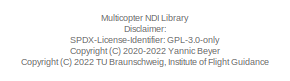
[diagram: root canvas - part 1/3, top left region]
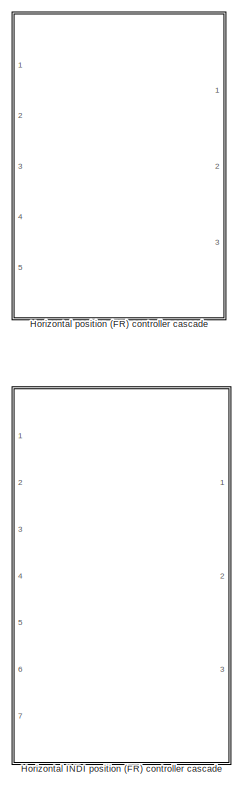
[diagram: root canvas - part 2/3, top center region]
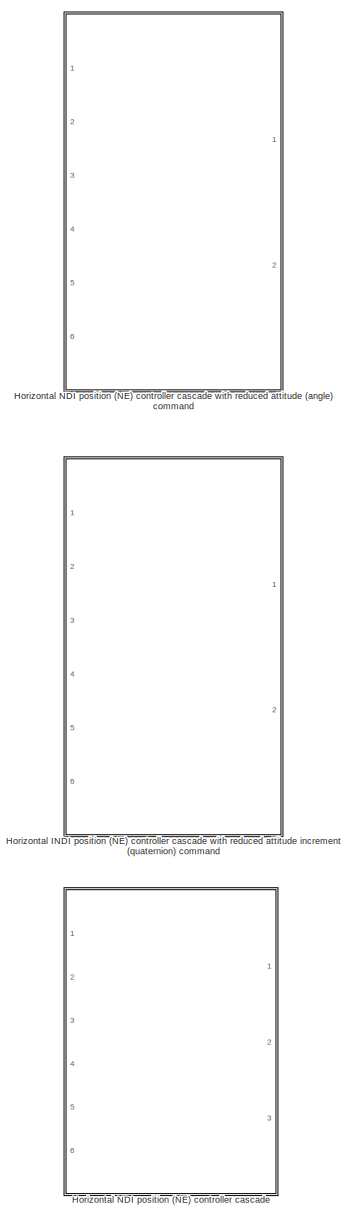
[diagram: root canvas - part 3/3, bottom center region]
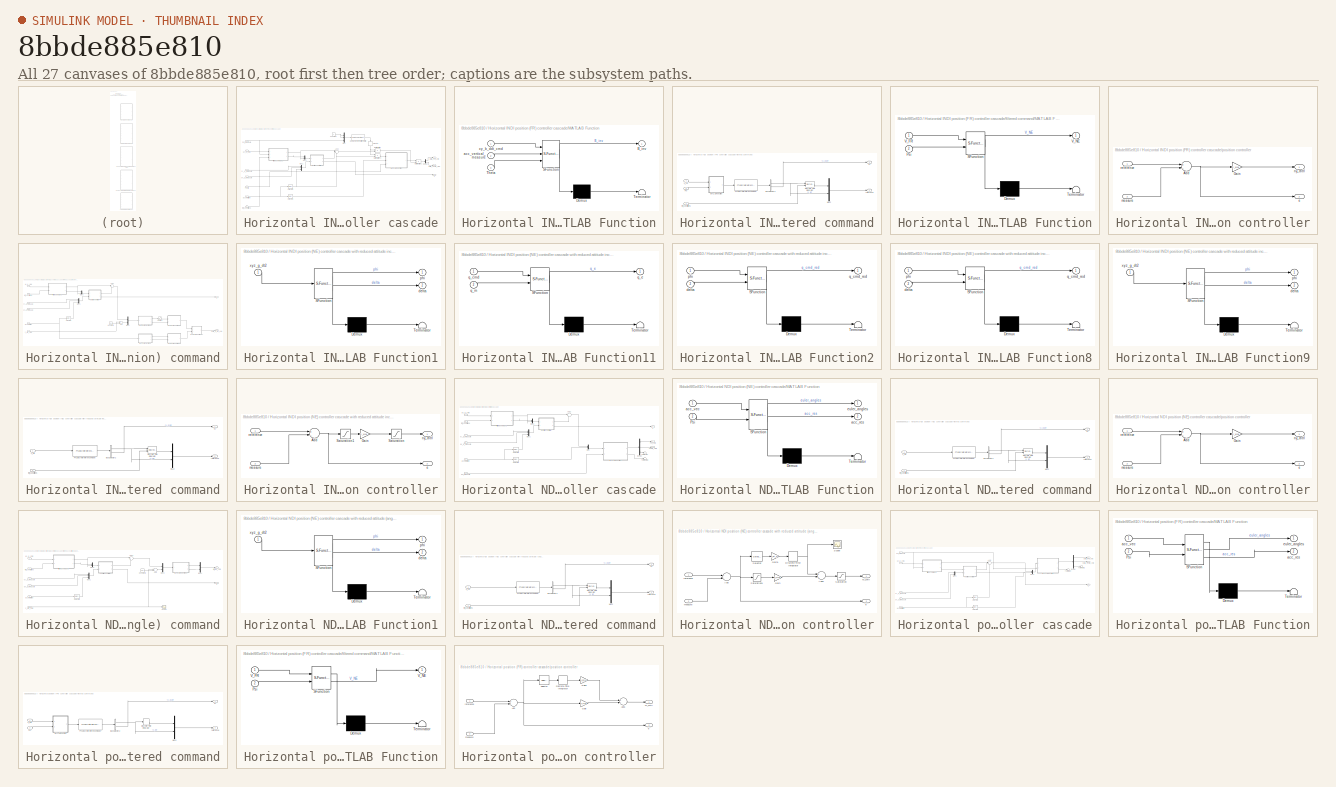
[diagram: thumbnail index - all 27 canvases of the model, root first then tree order]
MODEL slx_8bbde885e810
KIND library
CONFIG AbsTol = auto
CONFIG EnableMultiTasking = off
CONFIG FixedStep = auto
CONFIG MaxStep = auto
CONFIG MinStep = auto
CONFIG RelTol = 1e-3
CONFIG SampleTimeConstraint = Unconstrained
CONFIG Solver = VariableStepAuto
CONFIG SolverName = VariableStepAuto
CONFIG StartTime = 0.0
CONFIG StopTime = 10.0
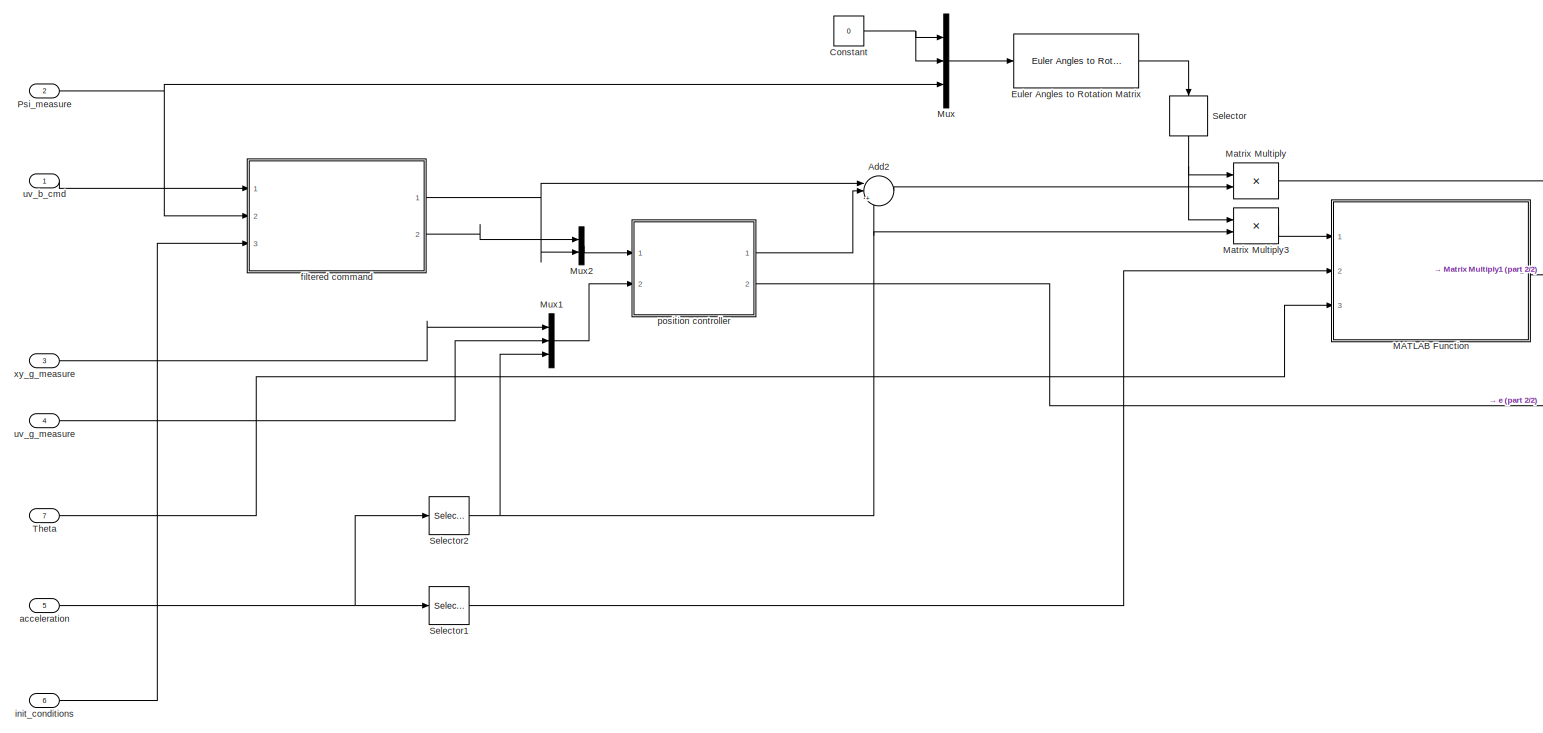
[diagram: Horizontal INDI position (FR) controller cascade - part 1/2, most of the canvas]
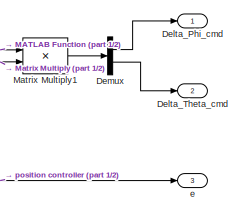
[diagram: Horizontal INDI position (FR) controller cascade - part 2/2, middle right region]
BLOCK [SubSystem] Horizontal INDI position (FR) controller cascade
  Ports = [7, 3]
  RequestExecContextInheritance = off
BLOCK [Sum] Horizontal INDI position (FR) controller cascade/Add2
  IconShape = round
  InputSameDT = off
  Inputs = ||++-
  OutDataTypeStr = Inherit: Inherit via internal rule
  Ports = [3, 1]
  SaturateOnIntegerOverflow = off
BLOCK [Constant] Horizontal INDI position (FR) controller cascade/Constant
  OutDataTypeStr = Inherit: Inherit via back propagation
  Value = 0
BLOCK [Outport] Horizontal INDI position (FR) controller cascade/Delta_Phi_cmd
  IconDisplay = Port number
BLOCK [Outport] Horizontal INDI position (FR) controller cascade/Delta_Theta_cmd
  IconDisplay = Port number
  Port = 2
BLOCK [Demux] Horizontal INDI position (FR) controller cascade/Demux
  DisplayOption = bar
  Outputs = 2
  Ports = [1, 2]
BLOCK [Reference] Horizontal INDI position (FR) controller cascade/Euler Angles to Rotation Matrix  REF=axes_transformation_lib/Euler Angles to Rotation Matrix  (lib defined in slx_69e2413c78c0)
  Ports = [1, 1]
  SourceBlock = axes_transformation_lib/Euler Angles to Rotation Matrix
  SourceProductName = LADAC
  SourceType = SubSystem
BLOCK [SubSystem] Horizontal INDI position (FR) controller cascade/MATLAB Function
  ErrorFcn = Stateflow.Translate.translate
  PermitHierarchicalResolution = ExplicitOnly
  Ports = [3, 1]
  RequestExecContextInheritance = off
  SFBlockType = MATLAB Function
  TreatAsAtomicUnit = on
BLOCK [Demux] Horizontal INDI position (FR) controller cascade/MATLAB Function/ Demux 
  Outputs = 1
  Ports = [1, 1]
BLOCK [S-Function] Horizontal INDI position (FR) controller cascade/MATLAB Function/ SFunction 
  EnableBusSupport = on
  FunctionName = sf_sfun
  PortCounts = [3 2]
  Ports = [3, 2]
  SFcnIsStateOwnerBlock = off
  SFunctionDeploymentMode = off
  Tag = Stateflow S-Function multicopterNDI_lib 6
BLOCK [Terminator] Horizontal INDI position (FR) controller cascade/MATLAB Function/ Terminator 
BLOCK [Outport] Horizontal INDI position (FR) controller cascade/MATLAB Function/B_inv
  IconDisplay = Port number
BLOCK [Inport] Horizontal INDI position (FR) controller cascade/MATLAB Function/Theta
  IconDisplay = Port number
  Port = 3
BLOCK [Inport] Horizontal INDI position (FR) controller cascade/MATLAB Function/acc_vertical_measure
  IconDisplay = Port number
  Port = 2
BLOCK [Inport] Horizontal INDI position (FR) controller cascade/MATLAB Function/xy_b_ddt_cmd
  IconDisplay = Port number
BLOCK [Product] Horizontal INDI position (FR) controller cascade/Matrix Multiply
  InputSameDT = off
  Multiplication = Matrix(*)
  OutDataTypeStr = Inherit: Inherit via internal rule
  Ports = [2, 1]
  RndMeth = Floor
  SaturateOnIntegerOverflow = off
BLOCK [Product] Horizontal INDI position (FR) controller cascade/Matrix Multiply1
  InputSameDT = off
  Multiplication = Matrix(*)
  OutDataTypeStr = Inherit: Inherit via internal rule
  Ports = [2, 1]
  RndMeth = Floor
  SaturateOnIntegerOverflow = off
BLOCK [Product] Horizontal INDI position (FR) controller cascade/Matrix Multiply3
  InputSameDT = off
  Multiplication = Matrix(*)
  OutDataTypeStr = Inherit: Inherit via internal rule
  Ports = [2, 1]
  RndMeth = Floor
  SaturateOnIntegerOverflow = off
BLOCK [Mux] Horizontal INDI position (FR) controller cascade/Mux
  DisplayOption = bar
  Inputs = 3
  Ports = [3, 1]
BLOCK [Mux] Horizontal INDI position (FR) controller cascade/Mux1
  DisplayOption = bar
  Inputs = 3
  Ports = [3, 1]
BLOCK [Mux] Horizontal INDI position (FR) controller cascade/Mux2
  DisplayOption = bar
  Inputs = 2
  Ports = [2, 1]
BLOCK [Inport] Horizontal INDI position (FR) controller cascade/Psi_measure
  IconDisplay = Port number
  Port = 2
BLOCK [Selector] Horizontal INDI position (FR) controller cascade/Selector
  IndexOptions = Index vector (dialog),Index vector (dialog)
  Indices = [1:2],[1:2]
  InputPortWidth = [3,3]
  NumberOfDimensions = 2
  OutputSizes = 1,1
  Ports = [1, 1]
BLOCK [Selector] Horizontal INDI position (FR) controller cascade/Selector1
  IndexOptions = Index vector (dialog)
  Indices = 3
  InputPortWidth = 3
  OutputSizes = 1
  Ports = [1, 1]
BLOCK [Selector] Horizontal INDI position (FR) controller cascade/Selector2
  IndexOptions = Index vector (dialog)
  Indices = [1,2]
  InputPortWidth = 3
  OutputSizes = 1
  Ports = [1, 1]
BLOCK [Inport] Horizontal INDI position (FR) controller cascade/Theta
  IconDisplay = Port number
  Port = 7
BLOCK [Inport] Horizontal INDI position (FR) controller cascade/acceleration
  IconDisplay = Port number
  Port = 5
BLOCK [Outport] Horizontal INDI position (FR) controller cascade/e
  IconDisplay = Port number
  Port = 3
BLOCK [SubSystem] Horizontal INDI position (FR) controller cascade/filtered command
  Ports = [3, 2]
  RequestExecContextInheritance = off
BLOCK [BusSelector] Horizontal INDI position (FR) controller cascade/filtered command/Bus Selector2
  OutputAsBus = off
  OutputSignals = x_ref,x_dt_ref
  Ports = [1, 2]
BLOCK [DiscreteIntegrator] Horizontal INDI position (FR) controller cascade/filtered command/Discrete-Time Integrator
  ICPrevOutput = DiscIntNeverNeededParam
  ICPrevScaledInput = DiscIntNeverNeededParam
  InitialConditionSetting = Auto
  InitialConditionSource = external
  Ports = [2, 1]
  SampleTime = -1
BLOCK [SubSystem] Horizontal INDI position (FR) controller cascade/filtered command/MATLAB Function
  ErrorFcn = Stateflow.Translate.translate
  PermitHierarchicalResolution = ExplicitOnly
  Ports = [2, 1]
  RequestExecContextInheritance = off
  SFBlockType = MATLAB Function
  TreatAsAtomicUnit = on
BLOCK [Demux] Horizontal INDI position (FR) controller cascade/filtered command/MATLAB Function/ Demux 
  Outputs = 1
  Ports = [1, 1]
BLOCK [S-Function] Horizontal INDI position (FR) controller cascade/filtered command/MATLAB Function/ SFunction 
  EnableBusSupport = on
  FunctionName = sf_sfun
  PortCounts = [2 2]
  Ports = [2, 2]
  SFcnIsStateOwnerBlock = off
  SFunctionDeploymentMode = off
  Tag = Stateflow S-Function multicopterNDI_lib 7
BLOCK [Terminator] Horizontal INDI position (FR) controller cascade/filtered command/MATLAB Function/ Terminator 
BLOCK [Inport] Horizontal INDI position (FR) controller cascade/filtered command/MATLAB Function/Psi
  IconDisplay = Port number
  Port = 2
BLOCK [Inport] Horizontal INDI position (FR) controller cascade/filtered command/MATLAB Function/V_FR
  IconDisplay = Port number
BLOCK [Outport] Horizontal INDI position (FR) controller cascade/filtered command/MATLAB Function/V_NE
  IconDisplay = Port number
BLOCK [Mux] Horizontal INDI position (FR) controller cascade/filtered command/Mux2
  DisplayOption = bar
  Inputs = 2
  Ports = [2, 1]
BLOCK [Reference] Horizontal INDI position (FR) controller cascade/filtered command/PT1 discrete reference model  REF=ndi_lib/PT1 discrete reference model  (lib defined in slx_72fedfba3911)
  Ports = [1, 1]
  SourceBlock = ndi_lib/PT1 discrete reference model
  SourceProductName = LADAC
BLOCK [Inport] Horizontal INDI position (FR) controller cascade/filtered command/Psi
  IconDisplay = Port number
  Port = 2
BLOCK [Inport] Horizontal INDI position (FR) controller cascade/filtered command/V_FR
  IconDisplay = Port number
BLOCK [Inport] Horizontal INDI position (FR) controller cascade/filtered command/init_conditions
  IconDisplay = Port number
  Port = 3
BLOCK [Outport] Horizontal INDI position (FR) controller cascade/filtered command/ny
  IconDisplay = Port number
BLOCK [Outport] Horizontal INDI position (FR) controller cascade/filtered command/reference
  IconDisplay = Port number
  Port = 2
BLOCK [Inport] Horizontal INDI position (FR) controller cascade/init_conditions
  IconDisplay = Port number
  Port = 6
BLOCK [SubSystem] Horizontal INDI position (FR) controller cascade/position controller
  Ports = [2, 2]
  RequestExecContextInheritance = off
BLOCK [Sum] Horizontal INDI position (FR) controller cascade/position controller/Add
  InputSameDT = off
  Inputs = +-
  OutDataTypeStr = Inherit: Inherit via internal rule
  Ports = [2, 1]
  SaturateOnIntegerOverflow = off
BLOCK [Gain] Horizontal INDI position (FR) controller cascade/position controller/Gain
  Gain = K_xyuv
  Multiplication = Matrix(K*u)
  OutDataTypeStr = Inherit: Inherit via internal rule
  ParamDataTypeStr = Inherit: Inherit via internal rule
  SaturateOnIntegerOverflow = off
BLOCK [Outport] Horizontal INDI position (FR) controller cascade/position controller/e
  IconDisplay = Port number
  Port = 2
BLOCK [Inport] Horizontal INDI position (FR) controller cascade/position controller/measure
  IconDisplay = Port number
  Port = 2
BLOCK [Outport] Horizontal INDI position (FR) controller cascade/position controller/ny_cntrl
  IconDisplay = Port number
BLOCK [Inport] Horizontal INDI position (FR) controller cascade/position controller/reference
  IconDisplay = Port number
BLOCK [Inport] Horizontal INDI position (FR) controller cascade/uv_b_cmd
  IconDisplay = Port number
BLOCK [Inport] Horizontal INDI position (FR) controller cascade/uv_g_measure
  IconDisplay = Port number
  Port = 4
BLOCK [Inport] Horizontal INDI position (FR) controller cascade/xy_g_measure
  IconDisplay = Port number
  Port = 3
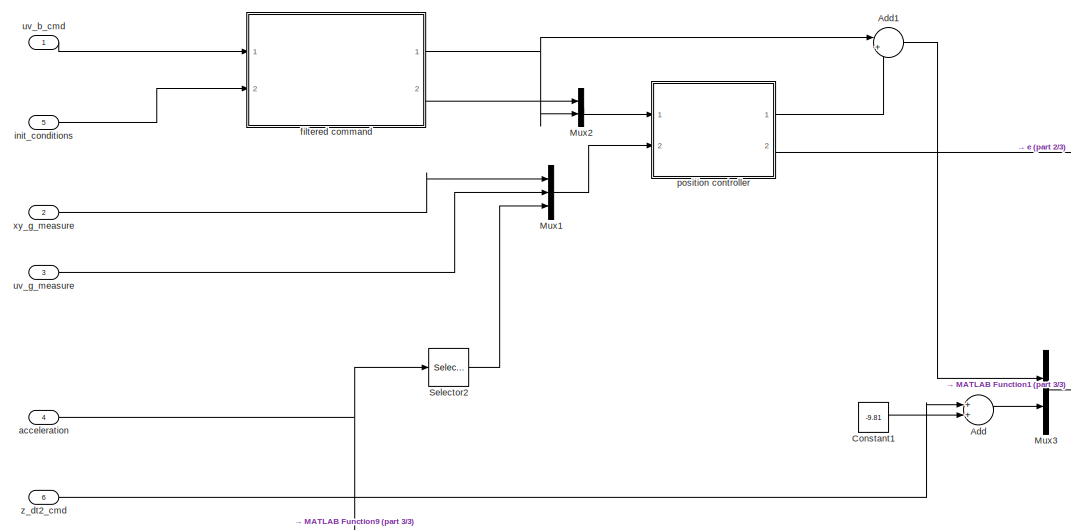
[diagram: Horizontal INDI position (NE) controller cascade with reduced attitude increment (quaternion) command - part 1/3, left side, full height]
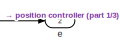
[diagram: Horizontal INDI position (NE) controller cascade with reduced attitude increment (quaternion) command - part 2/3, top right region]
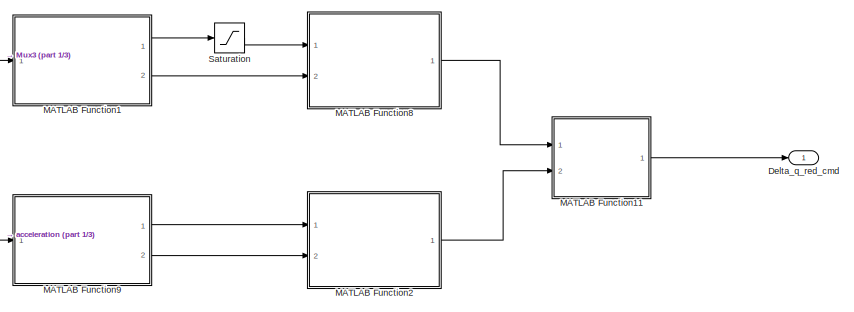
[diagram: Horizontal INDI position (NE) controller cascade with reduced attitude increment (quaternion) command - part 3/3, bottom right region]
BLOCK [SubSystem] Horizontal INDI position (NE) controller cascade with reduced attitude increment (quaternion) command
  Ports = [6, 2]
  RequestExecContextInheritance = off
BLOCK [Sum] Horizontal INDI position (NE) controller cascade with reduced attitude increment (quaternion) command/Add
  InputSameDT = off
  OutDataTypeStr = Inherit: Inherit via internal rule
  Ports = [2, 1]
  SaturateOnIntegerOverflow = off
BLOCK [Sum] Horizontal INDI position (NE) controller cascade with reduced attitude increment (quaternion) command/Add1
  IconShape = round
  InputSameDT = off
  Inputs = |++
  OutDataTypeStr = Inherit: Inherit via internal rule
  Ports = [2, 1]
  SaturateOnIntegerOverflow = off
BLOCK [Constant] Horizontal INDI position (NE) controller cascade with reduced attitude increment (quaternion) command/Constant1
  OutDataTypeStr = single
  Value = -9.81
BLOCK [Outport] Horizontal INDI position (NE) controller cascade with reduced attitude increment (quaternion) command/Delta_q_red_cmd
  IconDisplay = Port number
BLOCK [SubSystem] Horizontal INDI position (NE) controller cascade with reduced attitude increment (quaternion) command/MATLAB Function1
  ErrorFcn = Stateflow.Translate.translate
  PermitHierarchicalResolution = ExplicitOnly
  Ports = [1, 2]
  RequestExecContextInheritance = off
  SFBlockType = MATLAB Function
  TreatAsAtomicUnit = on
BLOCK [Demux] Horizontal INDI position (NE) controller cascade with reduced attitude increment (quaternion) command/MATLAB Function1/ Demux 
  Outputs = 1
  Ports = [1, 1]
BLOCK [S-Function] Horizontal INDI position (NE) controller cascade with reduced attitude increment (quaternion) command/MATLAB Function1/ SFunction 
  EnableBusSupport = off
  FunctionName = sf_sfun
  PortCounts = [1 3]
  Ports = [1, 3]
  SFcnIsStateOwnerBlock = off
  SFunctionDeploymentMode = off
  Tag = Stateflow S-Function multicopterNDI_lib 1
BLOCK [Terminator] Horizontal INDI position (NE) controller cascade with reduced attitude increment (quaternion) command/MATLAB Function1/ Terminator 
BLOCK [Outport] Horizontal INDI position (NE) controller cascade with reduced attitude increment (quaternion) command/MATLAB Function1/delta
  IconDisplay = Port number
  Port = 2
BLOCK [Outport] Horizontal INDI position (NE) controller cascade with reduced attitude increment (quaternion) command/MATLAB Function1/phi
  IconDisplay = Port number
BLOCK [Inport] Horizontal INDI position (NE) controller cascade with reduced attitude increment (quaternion) command/MATLAB Function1/xyz_g_dt2
  IconDisplay = Port number
BLOCK [SubSystem] Horizontal INDI position (NE) controller cascade with reduced attitude increment (quaternion) command/MATLAB Function11
  ErrorFcn = Stateflow.Translate.translate
  PermitHierarchicalResolution = ExplicitOnly
  Ports = [2, 1]
  RequestExecContextInheritance = off
  SFBlockType = MATLAB Function
  TreatAsAtomicUnit = on
BLOCK [Demux] Horizontal INDI position (NE) controller cascade with reduced attitude increment (quaternion) command/MATLAB Function11/ Demux 
  Outputs = 1
  Ports = [1, 1]
BLOCK [S-Function] Horizontal INDI position (NE) controller cascade with reduced attitude increment (quaternion) command/MATLAB Function11/ SFunction 
  EnableBusSupport = off
  FunctionName = sf_sfun
  PortCounts = [2 2]
  Ports = [2, 2]
  SFcnIsStateOwnerBlock = off
  SFunctionDeploymentMode = off
  Tag = Stateflow S-Function multicopterNDI_lib 23
BLOCK [Terminator] Horizontal INDI position (NE) controller cascade with reduced attitude increment (quaternion) command/MATLAB Function11/ Terminator 
BLOCK [Inport] Horizontal INDI position (NE) controller cascade with reduced attitude increment (quaternion) command/MATLAB Function11/q_cmd
  IconDisplay = Port number
BLOCK [Outport] Horizontal INDI position (NE) controller cascade with reduced attitude increment (quaternion) command/MATLAB Function11/q_e
  IconDisplay = Port number
BLOCK [Inport] Horizontal INDI position (NE) controller cascade with reduced attitude increment (quaternion) command/MATLAB Function11/q_m
  IconDisplay = Port number
  Port = 2
BLOCK [SubSystem] Horizontal INDI position (NE) controller cascade with reduced attitude increment (quaternion) command/MATLAB Function2
  ErrorFcn = Stateflow.Translate.translate
  PermitHierarchicalResolution = ExplicitOnly
  Ports = [2, 1]
  RequestExecContextInheritance = off
  SFBlockType = MATLAB Function
  TreatAsAtomicUnit = on
BLOCK [Demux] Horizontal INDI position (NE) controller cascade with reduced attitude increment (quaternion) command/MATLAB Function2/ Demux 
  Outputs = 1
  Ports = [1, 1]
BLOCK [S-Function] Horizontal INDI position (NE) controller cascade with reduced attitude increment (quaternion) command/MATLAB Function2/ SFunction 
  EnableBusSupport = off
  FunctionName = sf_sfun
  PortCounts = [2 2]
  Ports = [2, 2]
  SFcnIsStateOwnerBlock = off
  SFunctionDeploymentMode = off
  Tag = Stateflow S-Function multicopterNDI_lib 5
BLOCK [Terminator] Horizontal INDI position (NE) controller cascade with reduced attitude increment (quaternion) command/MATLAB Function2/ Terminator 
BLOCK [Inport] Horizontal INDI position (NE) controller cascade with reduced attitude increment (quaternion) command/MATLAB Function2/delta
  IconDisplay = Port number
  Port = 2
BLOCK [Inport] Horizontal INDI position (NE) controller cascade with reduced attitude increment (quaternion) command/MATLAB Function2/phi
  IconDisplay = Port number
BLOCK [Outport] Horizontal INDI position (NE) controller cascade with reduced attitude increment (quaternion) command/MATLAB Function2/q_cmd_red
  IconDisplay = Port number
BLOCK [SubSystem] Horizontal INDI position (NE) controller cascade with reduced attitude increment (quaternion) command/MATLAB Function8
  ErrorFcn = Stateflow.Translate.translate
  PermitHierarchicalResolution = ExplicitOnly
  Ports = [2, 1]
  RequestExecContextInheritance = off
  SFBlockType = MATLAB Function
  TreatAsAtomicUnit = on
BLOCK [Demux] Horizontal INDI position (NE) controller cascade with reduced attitude increment (quaternion) command/MATLAB Function8/ Demux 
  Outputs = 1
  Ports = [1, 1]
BLOCK [S-Function] Horizontal INDI position (NE) controller cascade with reduced attitude increment (quaternion) command/MATLAB Function8/ SFunction 
  EnableBusSupport = off
  FunctionName = sf_sfun
  PortCounts = [2 2]
  Ports = [2, 2]
  SFcnIsStateOwnerBlock = off
  SFunctionDeploymentMode = off
  Tag = Stateflow S-Function multicopterNDI_lib 8
BLOCK [Terminator] Horizontal INDI position (NE) controller cascade with reduced attitude increment (quaternion) command/MATLAB Function8/ Terminator 
BLOCK [Inport] Horizontal INDI position (NE) controller cascade with reduced attitude increment (quaternion) command/MATLAB Function8/delta
  IconDisplay = Port number
  Port = 2
BLOCK [Inport] Horizontal INDI position (NE) controller cascade with reduced attitude increment (quaternion) command/MATLAB Function8/phi
  IconDisplay = Port number
BLOCK [Outport] Horizontal INDI position (NE) controller cascade with reduced attitude increment (quaternion) command/MATLAB Function8/q_cmd_red
  IconDisplay = Port number
BLOCK [SubSystem] Horizontal INDI position (NE) controller cascade with reduced attitude increment (quaternion) command/MATLAB Function9
  ErrorFcn = Stateflow.Translate.translate
  PermitHierarchicalResolution = ExplicitOnly
  Ports = [1, 2]
  RequestExecContextInheritance = off
  SFBlockType = MATLAB Function
  TreatAsAtomicUnit = on
BLOCK [Demux] Horizontal INDI position (NE) controller cascade with reduced attitude increment (quaternion) command/MATLAB Function9/ Demux 
  Outputs = 1
  Ports = [1, 1]
BLOCK [S-Function] Horizontal INDI position (NE) controller cascade with reduced attitude increment (quaternion) command/MATLAB Function9/ SFunction 
  EnableBusSupport = off
  FunctionName = sf_sfun
  PortCounts = [1 3]
  Ports = [1, 3]
  SFcnIsStateOwnerBlock = off
  SFunctionDeploymentMode = off
  Tag = Stateflow S-Function multicopterNDI_lib 21
BLOCK [Terminator] Horizontal INDI position (NE) controller cascade with reduced attitude increment (quaternion) command/MATLAB Function9/ Terminator 
BLOCK [Outport] Horizontal INDI position (NE) controller cascade with reduced attitude increment (quaternion) command/MATLAB Function9/delta
  IconDisplay = Port number
  Port = 2
BLOCK [Outport] Horizontal INDI position (NE) controller cascade with reduced attitude increment (quaternion) command/MATLAB Function9/phi
  IconDisplay = Port number
BLOCK [Inport] Horizontal INDI position (NE) controller cascade with reduced attitude increment (quaternion) command/MATLAB Function9/xyz_g_dt2
  IconDisplay = Port number
BLOCK [Mux] Horizontal INDI position (NE) controller cascade with reduced attitude increment (quaternion) command/Mux1
  DisplayOption = bar
  Inputs = 3
  Ports = [3, 1]
BLOCK [Mux] Horizontal INDI position (NE) controller cascade with reduced attitude increment (quaternion) command/Mux2
  DisplayOption = bar
  Inputs = 2
  Ports = [2, 1]
BLOCK [Mux] Horizontal INDI position (NE) controller cascade with reduced attitude increment (quaternion) command/Mux3
  DisplayOption = bar
  Inputs = 2
  Ports = [2, 1]
BLOCK [Saturate] Horizontal INDI position (NE) controller cascade with reduced attitude increment (quaternion) command/Saturation
  InputPortMap = u0
  LowerLimit = 0
  Ports = [1, 1]
  UpperLimit = tilt_angle_max
BLOCK [Selector] Horizontal INDI position (NE) controller cascade with reduced attitude increment (quaternion) command/Selector2
  IndexOptions = Index vector (dialog)
  Indices = [1,2]
  InputPortWidth = 3
  OutputSizes = 1
  Ports = [1, 1]
BLOCK [Inport] Horizontal INDI position (NE) controller cascade with reduced attitude increment (quaternion) command/acceleration
  IconDisplay = Port number
  Port = 4
BLOCK [Outport] Horizontal INDI position (NE) controller cascade with reduced attitude increment (quaternion) command/e
  IconDisplay = Port number
  Port = 2
BLOCK [SubSystem] Horizontal INDI position (NE) controller cascade with reduced attitude increment (quaternion) command/filtered command
  Ports = [2, 2]
  RequestExecContextInheritance = off
BLOCK [BusSelector] Horizontal INDI position (NE) controller cascade with reduced attitude increment (quaternion) command/filtered command/Bus Selector2
  OutputAsBus = off
  OutputSignals = x_ref,x_dt_ref
  Ports = [1, 2]
BLOCK [DiscreteIntegrator] Horizontal INDI position (NE) controller cascade with reduced attitude increment (quaternion) command/filtered command/Discrete-Time Integrator
  ICPrevOutput = DiscIntNeverNeededParam
  ICPrevScaledInput = DiscIntNeverNeededParam
  InitialConditionSetting = Auto
  InitialConditionSource = external
  Ports = [2, 1]
  SampleTime = -1
BLOCK [Mux] Horizontal INDI position (NE) controller cascade with reduced attitude increment (quaternion) command/filtered command/Mux2
  DisplayOption = bar
  Inputs = 2
  Ports = [2, 1]
BLOCK [Reference] Horizontal INDI position (NE) controller cascade with reduced attitude increment (quaternion) command/filtered command/PT1 discrete reference model  REF=ndi_lib/PT1 discrete reference model  (lib defined in slx_72fedfba3911)
  Ports = [1, 1]
  SourceBlock = ndi_lib/PT1 discrete reference model
  SourceProductName = LADAC
BLOCK [Inport] Horizontal INDI position (NE) controller cascade with reduced attitude increment (quaternion) command/filtered command/V_NE
  IconDisplay = Port number
BLOCK [Inport] Horizontal INDI position (NE) controller cascade with reduced attitude increment (quaternion) command/filtered command/init_conditions
  IconDisplay = Port number
  Port = 2
BLOCK [Outport] Horizontal INDI position (NE) controller cascade with reduced attitude increment (quaternion) command/filtered command/ny
  IconDisplay = Port number
BLOCK [Outport] Horizontal INDI position (NE) controller cascade with reduced attitude increment (quaternion) command/filtered command/reference
  IconDisplay = Port number
  Port = 2
BLOCK [Inport] Horizontal INDI position (NE) controller cascade with reduced attitude increment (quaternion) command/init_conditions
  IconDisplay = Port number
  Port = 5
BLOCK [SubSystem] Horizontal INDI position (NE) controller cascade with reduced attitude increment (quaternion) command/position controller
  Ports = [2, 2]
  RequestExecContextInheritance = off
BLOCK [Sum] Horizontal INDI position (NE) controller cascade with reduced attitude increment (quaternion) command/position controller/Add
  InputSameDT = off
  Inputs = +-
  OutDataTypeStr = Inherit: Inherit via internal rule
  Ports = [2, 1]
  SaturateOnIntegerOverflow = off
BLOCK [Gain] Horizontal INDI position (NE) controller cascade with reduced attitude increment (quaternion) command/position controller/Gain
  Gain = K_xyuv
  Multiplication = Matrix(K*u)
  OutDataTypeStr = Inherit: Inherit via internal rule
  ParamDataTypeStr = Inherit: Inherit via internal rule
  SaturateOnIntegerOverflow = off
BLOCK [Saturate] Horizontal INDI position (NE) controller cascade with reduced attitude increment (quaternion) command/position controller/Saturation
  InputPortMap = u0
  LowerLimit = -cntrl.rm.uv_dt_max
  Ports = [1, 1]
  UpperLimit = cntrl.rm.uv_dt_max
BLOCK [Saturate] Horizontal INDI position (NE) controller cascade with reduced attitude increment (quaternion) command/position controller/Saturation1
  InputPortMap = u0
  LowerLimit = -[e_xy_max;1000;1000;1000;1000]
  Ports = [1, 1]
  UpperLimit = [e_xy_max;1000;1000;1000;1000]
BLOCK [Outport] Horizontal INDI position (NE) controller cascade with reduced attitude increment (quaternion) command/position controller/e
  IconDisplay = Port number
  Port = 2
BLOCK [Inport] Horizontal INDI position (NE) controller cascade with reduced attitude increment (quaternion) command/position controller/measure
  IconDisplay = Port number
  Port = 2
BLOCK [Outport] Horizontal INDI position (NE) controller cascade with reduced attitude increment (quaternion) command/position controller/ny_cntrl
  IconDisplay = Port number
BLOCK [Inport] Horizontal INDI position (NE) controller cascade with reduced attitude increment (quaternion) command/position controller/reference
  IconDisplay = Port number
BLOCK [Inport] Horizontal INDI position (NE) controller cascade with reduced attitude increment (quaternion) command/uv_b_cmd
  IconDisplay = Port number
BLOCK [Inport] Horizontal INDI position (NE) controller cascade with reduced attitude increment (quaternion) command/uv_g_measure
  IconDisplay = Port number
  Port = 3
BLOCK [Inport] Horizontal INDI position (NE) controller cascade with reduced attitude increment (quaternion) command/xy_g_measure
  IconDisplay = Port number
  Port = 2
BLOCK [Inport] Horizontal INDI position (NE) controller cascade with reduced attitude increment (quaternion) command/z_dt2_cmd
  IconDisplay = Port number
  Port = 6
BLOCK [SubSystem] Horizontal NDI position (NE) controller cascade
  Ports = [6, 3]
  RequestExecContextInheritance = off
BLOCK [SubSystem] Horizontal NDI position (NE) controller cascade with reduced attitude (angle) command
  Ports = [6, 2]
  RequestExecContextInheritance = off
BLOCK [Sum] Horizontal NDI position (NE) controller cascade with reduced attitude (angle) command/Add
  InputSameDT = off
  OutDataTypeStr = Inherit: Inherit via internal rule
  Ports = [2, 1]
  SaturateOnIntegerOverflow = off
BLOCK [Sum] Horizontal NDI position (NE) controller cascade with reduced attitude (angle) command/Add1
  IconShape = round
  InputSameDT = off
  Inputs = |++
  OutDataTypeStr = Inherit: Inherit via internal rule
  Ports = [2, 1]
  SaturateOnIntegerOverflow = off
BLOCK [Constant] Horizontal NDI position (NE) controller cascade with reduced attitude (angle) command/Constant1
  OutDataTypeStr = single
  Value = -9.81
BLOCK [SubSystem] Horizontal NDI position (NE) controller cascade with reduced attitude (angle) command/MATLAB Function1
  ErrorFcn = Stateflow.Translate.translate
  PermitHierarchicalResolution = ExplicitOnly
  Ports = [1, 2]
  RequestExecContextInheritance = off
  SFBlockType = MATLAB Function
  TreatAsAtomicUnit = on
BLOCK [Demux] Horizontal NDI position (NE) controller cascade with reduced attitude (angle) command/MATLAB Function1/ Demux 
  Outputs = 1
  Ports = [1, 1]
BLOCK [S-Function] Horizontal NDI position (NE) controller cascade with reduced attitude (angle) command/MATLAB Function1/ SFunction 
  EnableBusSupport = off
  FunctionName = sf_sfun
  PortCounts = [1 3]
  Ports = [1, 3]
  SFcnIsStateOwnerBlock = off
  SFunctionDeploymentMode = off
  Tag = Stateflow S-Function multicopterNDI_lib 9
BLOCK [Terminator] Horizontal NDI position (NE) controller cascade with reduced attitude (angle) command/MATLAB Function1/ Terminator 
BLOCK [Outport] Horizontal NDI position (NE) controller cascade with reduced attitude (angle) command/MATLAB Function1/delta
  IconDisplay = Port number
  Port = 2
BLOCK [Outport] Horizontal NDI position (NE) controller cascade with reduced attitude (angle) command/MATLAB Function1/phi
  IconDisplay = Port number
BLOCK [Inport] Horizontal NDI position (NE) controller cascade with reduced attitude (angle) command/MATLAB Function1/xyz_g_dt2
  IconDisplay = Port number
BLOCK [Mux] Horizontal NDI position (NE) controller cascade with reduced attitude (angle) command/Mux1
  DisplayOption = bar
  Inputs = 3
  Ports = [3, 1]
BLOCK [Mux] Horizontal NDI position (NE) controller cascade with reduced attitude (angle) command/Mux2
  DisplayOption = bar
  Inputs = 2
  Ports = [2, 1]
BLOCK [Mux] Horizontal NDI position (NE) controller cascade with reduced attitude (angle) command/Mux3
  DisplayOption = bar
  Inputs = 2
  Ports = [2, 1]
BLOCK [Mux] Horizontal NDI position (NE) controller cascade with reduced attitude (angle) command/Mux4
  DisplayOption = bar
  Inputs = 2
  Ports = [2, 1]
BLOCK [Scope] Horizontal NDI position (NE) controller cascade with reduced attitude (angle) command/Scope
  Floating = off
  NumInputPorts = 1
  Ports = [1]
  ScopeSpecificationString = Simulink.scopes.TimeScopeBlockCfg('CurrentConfiguration', extmgr.ConfigurationSet(extmgr.Configuration('Core','General UI',true),extmgr.Configuration('Core','Source UI',true),extmgr.Configuration('Sources','WiredSimulink',true,'DataLoggingVariableName','ScopeData5'),extmgr.Configuration('Visuals','Time Domain',true,'SerializedDisplays',{struct('MinYLimReal','-1.00000','MaxYLimReal','1.00000','YLab...<+1439ch>
BLOCK [Selector] Horizontal NDI position (NE) controller cascade with reduced attitude (angle) command/Selector2
  IndexOptions = Index vector (dialog)
  Indices = [1,2]
  InputPortWidth = 3
  OutputSizes = 1
  Ports = [1, 1]
BLOCK [Inport] Horizontal NDI position (NE) controller cascade with reduced attitude (angle) command/acceleration
  IconDisplay = Port number
  Port = 4
BLOCK [Outport] Horizontal NDI position (NE) controller cascade with reduced attitude (angle) command/atti_red_cmd
  IconDisplay = Port number
BLOCK [Outport] Horizontal NDI position (NE) controller cascade with reduced attitude (angle) command/e
  IconDisplay = Port number
  Port = 2
BLOCK [SubSystem] Horizontal NDI position (NE) controller cascade with reduced attitude (angle) command/filtered command
  Ports = [2, 2]
  RequestExecContextInheritance = off
BLOCK [BusSelector] Horizontal NDI position (NE) controller cascade with reduced attitude (angle) command/filtered command/Bus Selector2
  OutputAsBus = off
  OutputSignals = x_ref,x_dt_ref
  Ports = [1, 2]
BLOCK [DiscreteIntegrator] Horizontal NDI position (NE) controller cascade with reduced attitude (angle) command/filtered command/Discrete-Time Integrator
  ICPrevOutput = DiscIntNeverNeededParam
  ICPrevScaledInput = DiscIntNeverNeededParam
  InitialConditionSetting = Auto
  InitialConditionSource = external
  Ports = [2, 1]
  SampleTime = -1
BLOCK [Mux] Horizontal NDI position (NE) controller cascade with reduced attitude (angle) command/filtered command/Mux2
  DisplayOption = bar
  Inputs = 2
  Ports = [2, 1]
BLOCK [Reference] Horizontal NDI position (NE) controller cascade with reduced attitude (angle) command/filtered command/PT1 discrete reference model  REF=ndi_lib/PT1 discrete reference model  (lib defined in slx_72fedfba3911)
  Ports = [1, 1]
  SourceBlock = ndi_lib/PT1 discrete reference model
  SourceProductName = LADAC
BLOCK [Inport] Horizontal NDI position (NE) controller cascade with reduced attitude (angle) command/filtered command/V_FR
  IconDisplay = Port number
BLOCK [Inport] Horizontal NDI position (NE) controller cascade with reduced attitude (angle) command/filtered command/init_conditions
  IconDisplay = Port number
  Port = 2
BLOCK [Outport] Horizontal NDI position (NE) controller cascade with reduced attitude (angle) command/filtered command/ny
  IconDisplay = Port number
BLOCK [Outport] Horizontal NDI position (NE) controller cascade with reduced attitude (angle) command/filtered command/reference
  IconDisplay = Port number
  Port = 2
BLOCK [Inport] Horizontal NDI position (NE) controller cascade with reduced attitude (angle) command/init_conditions
  IconDisplay = Port number
  Port = 6
BLOCK [SubSystem] Horizontal NDI position (NE) controller cascade with reduced attitude (angle) command/position controller
  Ports = [2, 2]
  RequestExecContextInheritance = off
BLOCK [Sum] Horizontal NDI position (NE) controller cascade with reduced attitude (angle) command/position controller/Add
  InputSameDT = off
  Inputs = +-
  OutDataTypeStr = Inherit: Inherit via internal rule
  Ports = [2, 1]
  SaturateOnIntegerOverflow = off
BLOCK [Sum] Horizontal NDI position (NE) controller cascade with reduced attitude (angle) command/position controller/Add1
  InputSameDT = off
  OutDataTypeStr = Inherit: Inherit via internal rule
  Ports = [2, 1]
  SaturateOnIntegerOverflow = off
BLOCK [DiscreteIntegrator] Horizontal NDI position (NE) controller cascade with reduced attitude (angle) command/position controller/Discrete-Time Integrator
  ICPrevOutput = DiscIntNeverNeededParam
  ICPrevScaledInput = DiscIntNeverNeededParam
  InitialConditionSetting = Auto
  LimitOutput = on
  LowerSaturationLimit = -e_xy_max
  Ports = [1, 1]
  SampleTime = -1
  UpperSaturationLimit = e_xy_max
BLOCK [Gain] Horizontal NDI position (NE) controller cascade with reduced attitude (angle) command/position controller/Gain
  Gain = K_xyuv
  Multiplication = Matrix(K*u)
  OutDataTypeStr = Inherit: Inherit via internal rule
  ParamDataTypeStr = Inherit: Inherit via internal rule
  SaturateOnIntegerOverflow = off
BLOCK [Gain] Horizontal NDI position (NE) controller cascade with reduced attitude (angle) command/position controller/Gain1
  Gain = K_int_xy
  Multiplication = Matrix(K*u)
  OutDataTypeStr = Inherit: Inherit via internal rule
  ParamDataTypeStr = Inherit: Inherit via internal rule
  SaturateOnIntegerOverflow = off
BLOCK [Saturate] Horizontal NDI position (NE) controller cascade with reduced attitude (angle) command/position controller/Saturation
  InputPortMap = u0
  LowerLimit = -cntrl.rm.uv_dt_max
  Ports = [1, 1]
  UpperLimit = cntrl.rm.uv_dt_max
BLOCK [Saturate] Horizontal NDI position (NE) controller cascade with reduced attitude (angle) command/position controller/Saturation1
  InputPortMap = u0
  LowerLimit = -[e_xy_max;inf;inf;inf;inf]
  Ports = [1, 1]
  UpperLimit = [e_xy_max;inf;inf;inf;inf]
BLOCK [Scope] Horizontal NDI position (NE) controller cascade with reduced attitude (angle) command/position controller/Scope
  Floating = off
  NumInputPorts = 1
  Ports = [1]
  ScopeSpecificationString = Simulink.scopes.TimeScopeBlockCfg('CurrentConfiguration', extmgr.ConfigurationSet(extmgr.Configuration('Core','General UI',true),extmgr.Configuration('Core','Source UI',true),extmgr.Configuration('Sources','WiredSimulink',true,'DataLoggingVariableName','ScopeData2'),extmgr.Configuration('Visuals','Time Domain',true,'SerializedDisplays',{struct('MinYLimReal','-1.00000','MaxYLimReal','1.00000','YLab...<+1439ch>
BLOCK [Selector] Horizontal NDI position (NE) controller cascade with reduced attitude (angle) command/position controller/Selector
  IndexOptions = Index vector (dialog)
  Indices = [1:2]
  InputPortWidth = 6
  OutputSizes = 1
  Ports = [1, 1]
BLOCK [Outport] Horizontal NDI position (NE) controller cascade with reduced attitude (angle) command/position controller/e
  IconDisplay = Port number
  Port = 2
BLOCK [Inport] Horizontal NDI position (NE) controller cascade with reduced attitude (angle) command/position controller/measure
  IconDisplay = Port number
  Port = 2
BLOCK [Outport] Horizontal NDI position (NE) controller cascade with reduced attitude (angle) command/position controller/ny_cntrl
  IconDisplay = Port number
BLOCK [Inport] Horizontal NDI position (NE) controller cascade with reduced attitude (angle) command/position controller/reference
  IconDisplay = Port number
BLOCK [Inport] Horizontal NDI position (NE) controller cascade with reduced attitude (angle) command/uv_b_cmd
  IconDisplay = Port number
BLOCK [Inport] Horizontal NDI position (NE) controller cascade with reduced attitude (angle) command/uv_g_measure
  IconDisplay = Port number
  Port = 3
BLOCK [Inport] Horizontal NDI position (NE) controller cascade with reduced attitude (angle) command/xy_g_measure
  IconDisplay = Port number
  Port = 2
BLOCK [Inport] Horizontal NDI position (NE) controller cascade with reduced attitude (angle) command/z_dt2_cmd
  IconDisplay = Port number
  Port = 5
BLOCK [Sum] Horizontal NDI position (NE) controller cascade/Add2
  IconShape = round
  InputSameDT = off
  Inputs = |++
  OutDataTypeStr = Inherit: Inherit via internal rule
  Ports = [2, 1]
  SaturateOnIntegerOverflow = off
BLOCK [Demux] Horizontal NDI position (NE) controller cascade/Demux
  DisplayOption = bar
  Outputs = 3
  Ports = [1, 3]
BLOCK [SubSystem] Horizontal NDI position (NE) controller cascade/MATLAB Function
  ErrorFcn = Stateflow.Translate.translate
  PermitHierarchicalResolution = ExplicitOnly
  Ports = [2, 2]
  RequestExecContextInheritance = off
  SFBlockType = MATLAB Function
  TreatAsAtomicUnit = on
BLOCK [Demux] Horizontal NDI position (NE) controller cascade/MATLAB Function/ Demux 
  Outputs = 1
  Ports = [1, 1]
BLOCK [S-Function] Horizontal NDI position (NE) controller cascade/MATLAB Function/ SFunction 
  EnableBusSupport = off
  FunctionName = sf_sfun
  PortCounts = [2 3]
  Ports = [2, 3]
  SFcnIsStateOwnerBlock = off
  SFunctionDeploymentMode = off
  Tag = Stateflow S-Function multicopterNDI_lib 4
BLOCK [Terminator] Horizontal NDI position (NE) controller cascade/MATLAB Function/ Terminator 
BLOCK [Inport] Horizontal NDI position (NE) controller cascade/MATLAB Function/Psi
  IconDisplay = Port number
  Port = 2
BLOCK [Outport] Horizontal NDI position (NE) controller cascade/MATLAB Function/acc_res
  IconDisplay = Port number
  Port = 2
BLOCK [Inport] Horizontal NDI position (NE) controller cascade/MATLAB Function/acc_vec
  IconDisplay = Port number
BLOCK [Outport] Horizontal NDI position (NE) controller cascade/MATLAB Function/euler_angles
  IconDisplay = Port number
BLOCK [Mux] Horizontal NDI position (NE) controller cascade/Mux
  DisplayOption = bar
  Inputs = 2
  Ports = [2, 1]
BLOCK [Mux] Horizontal NDI position (NE) controller cascade/Mux1
  DisplayOption = bar
  Inputs = 3
  Ports = [3, 1]
BLOCK [Mux] Horizontal NDI position (NE) controller cascade/Mux2
  DisplayOption = bar
  Inputs = 2
  Ports = [2, 1]
BLOCK [Outport] Horizontal NDI position (NE) controller cascade/Phi_cmd
  IconDisplay = Port number
  Port = 2
BLOCK [Inport] Horizontal NDI position (NE) controller cascade/Psi_measure
  IconDisplay = Port number
  Port = 6
BLOCK [Selector] Horizontal NDI position (NE) controller cascade/Selector1
  IndexOptions = Index vector (dialog)
  Indices = 3
  InputPortWidth = 3
  OutputSizes = 1
  Ports = [1, 1]
BLOCK [Selector] Horizontal NDI position (NE) controller cascade/Selector2
  IndexOptions = Index vector (dialog)
  Indices = [1,2]
  InputPortWidth = 3
  OutputSizes = 1
  Ports = [1, 1]
BLOCK [Terminator] Horizontal NDI position (NE) controller cascade/Terminator
BLOCK [Terminator] Horizontal NDI position (NE) controller cascade/Terminator1
BLOCK [Outport] Horizontal NDI position (NE) controller cascade/Theta_cmd
  IconDisplay = Port number
  Port = 3
BLOCK [Inport] Horizontal NDI position (NE) controller cascade/acceleration
  IconDisplay = Port number
  Port = 4
BLOCK [Outport] Horizontal NDI position (NE) controller cascade/e
  IconDisplay = Port number
BLOCK [SubSystem] Horizontal NDI position (NE) controller cascade/filtered command
  Ports = [2, 2]
  RequestExecContextInheritance = off
BLOCK [BusSelector] Horizontal NDI position (NE) controller cascade/filtered command/Bus Selector2
  OutputAsBus = off
  OutputSignals = x_ref,x_dt_ref
  Ports = [1, 2]
BLOCK [DiscreteIntegrator] Horizontal NDI position (NE) controller cascade/filtered command/Discrete-Time Integrator
  ICPrevOutput = DiscIntNeverNeededParam
  ICPrevScaledInput = DiscIntNeverNeededParam
  InitialConditionSetting = Auto
  InitialConditionSource = external
  Ports = [2, 1]
  SampleTime = -1
BLOCK [Mux] Horizontal NDI position (NE) controller cascade/filtered command/Mux2
  DisplayOption = bar
  Inputs = 2
  Ports = [2, 1]
BLOCK [Reference] Horizontal NDI position (NE) controller cascade/filtered command/PT1 discrete reference model  REF=ndi_lib/PT1 discrete reference model  (lib defined in slx_72fedfba3911)
  Ports = [1, 1]
  SourceBlock = ndi_lib/PT1 discrete reference model
  SourceProductName = LADAC
BLOCK [Inport] Horizontal NDI position (NE) controller cascade/filtered command/V_NE
  IconDisplay = Port number
BLOCK [Inport] Horizontal NDI position (NE) controller cascade/filtered command/init_conditions
  IconDisplay = Port number
  Port = 2
BLOCK [Outport] Horizontal NDI position (NE) controller cascade/filtered command/ny
  IconDisplay = Port number
BLOCK [Outport] Horizontal NDI position (NE) controller cascade/filtered command/reference
  IconDisplay = Port number
  Port = 2
BLOCK [Inport] Horizontal NDI position (NE) controller cascade/init_conditions
  IconDisplay = Port number
  Port = 5
BLOCK [SubSystem] Horizontal NDI position (NE) controller cascade/position controller
  Ports = [2, 2]
  RequestExecContextInheritance = off
BLOCK [Sum] Horizontal NDI position (NE) controller cascade/position controller/Add
  InputSameDT = off
  Inputs = +-
  OutDataTypeStr = Inherit: Inherit via internal rule
  Ports = [2, 1]
  SaturateOnIntegerOverflow = off
BLOCK [Gain] Horizontal NDI position (NE) controller cascade/position controller/Gain
  Gain = K_xyuv
  Multiplication = Matrix(K*u)
  OutDataTypeStr = Inherit: Inherit via internal rule
  ParamDataTypeStr = Inherit: Inherit via internal rule
  SaturateOnIntegerOverflow = off
BLOCK [Outport] Horizontal NDI position (NE) controller cascade/position controller/e
  IconDisplay = Port number
  Port = 2
BLOCK [Inport] Horizontal NDI position (NE) controller cascade/position controller/measure
  IconDisplay = Port number
  Port = 2
BLOCK [Outport] Horizontal NDI position (NE) controller cascade/position controller/ny_cntrl
  IconDisplay = Port number
BLOCK [Inport] Horizontal NDI position (NE) controller cascade/position controller/reference
  IconDisplay = Port number
BLOCK [Inport] Horizontal NDI position (NE) controller cascade/uv_g_cmd
  IconDisplay = Port number
BLOCK [Inport] Horizontal NDI position (NE) controller cascade/uv_g_measure
  IconDisplay = Port number
  Port = 3
BLOCK [Inport] Horizontal NDI position (NE) controller cascade/xy_g_measure
  IconDisplay = Port number
  Port = 2
BLOCK [SubSystem] Horizontal position (FR) controller cascade
  Ports = [5, 3]
  RequestExecContextInheritance = off
BLOCK [Sum] Horizontal position (FR) controller cascade/Add2
  IconShape = round
  InputSameDT = off
  Inputs = ||++-
  OutDataTypeStr = Inherit: Inherit via internal rule
  Ports = [3, 1]
  SaturateOnIntegerOverflow = off
BLOCK [Outport] Horizontal position (FR) controller cascade/Delta_Phi_cmd
  IconDisplay = Port number
BLOCK [Outport] Horizontal position (FR) controller cascade/Delta_Theta_cmd
  IconDisplay = Port number
  Port = 2
BLOCK [Demux] Horizontal position (FR) controller cascade/Demux
  DisplayOption = bar
  Outputs = 3
  Ports = [1, 3]
BLOCK [SubSystem] Horizontal position (FR) controller cascade/MATLAB Function
  ErrorFcn = Stateflow.Translate.translate
  PermitHierarchicalResolution = ExplicitOnly
  Ports = [2, 2]
  RequestExecContextInheritance = off
  SFBlockType = MATLAB Function
  TreatAsAtomicUnit = on
BLOCK [Demux] Horizontal position (FR) controller cascade/MATLAB Function/ Demux 
  DisplayOption = bar
  Outputs = 1
  Ports = [1, 1]
BLOCK [S-Function] Horizontal position (FR) controller cascade/MATLAB Function/ SFunction 
  EnableBusSupport = off
  FunctionName = sf_sfun
  PortCounts = [2 3]
  Ports = [2, 3]
  SFcnIsStateOwnerBlock = off
  SFunctionDeploymentMode = off
  Tag = Stateflow S-Function multicopterNDI_lib 2
BLOCK [Terminator] Horizontal position (FR) controller cascade/MATLAB Function/ Terminator 
BLOCK [Inport] Horizontal position (FR) controller cascade/MATLAB Function/Psi
  IconDisplay = Port number
  Port = 2
BLOCK [Outport] Horizontal position (FR) controller cascade/MATLAB Function/acc_res
  IconDisplay = Port number
  Port = 2
BLOCK [Inport] Horizontal position (FR) controller cascade/MATLAB Function/acc_vec
  IconDisplay = Port number
BLOCK [Outport] Horizontal position (FR) controller cascade/MATLAB Function/euler_angles
  IconDisplay = Port number
BLOCK [Mux] Horizontal position (FR) controller cascade/Mux1
  DisplayOption = bar
  Inputs = 2
  Ports = [2, 1]
BLOCK [Mux] Horizontal position (FR) controller cascade/Mux2
  DisplayOption = bar
  Inputs = 2
  Ports = [2, 1]
BLOCK [Inport] Horizontal position (FR) controller cascade/Psi_measure
  IconDisplay = Port number
  Port = 2
BLOCK [Selector] Horizontal position (FR) controller cascade/Selector1
  IndexOptions = Index vector (dialog)
  Indices = 3
  InputPortWidth = 3
  OutputSizes = 1
  Ports = [1, 1]
BLOCK [Selector] Horizontal position (FR) controller cascade/Selector2
  IndexOptions = Index vector (dialog)
  Indices = [1,2]
  InputPortWidth = 3
  OutputSizes = 1
  Ports = [1, 1]
BLOCK [Terminator] Horizontal position (FR) controller cascade/Terminator
BLOCK [Terminator] Horizontal position (FR) controller cascade/Terminator1
BLOCK [Inport] Horizontal position (FR) controller cascade/accelerattion
  IconDisplay = Port number
  Port = 5
BLOCK [Outport] Horizontal position (FR) controller cascade/e
  IconDisplay = Port number
  Port = 3
BLOCK [SubSystem] Horizontal position (FR) controller cascade/filtered command
  Ports = [2, 2]
  RequestExecContextInheritance = off
BLOCK [BusSelector] Horizontal position (FR) controller cascade/filtered command/Bus Selector2
  OutputAsBus = off
  OutputSignals = x_ref,x_dt_ref
  Ports = [1, 2]
BLOCK [DiscreteIntegrator] Horizontal position (FR) controller cascade/filtered command/Discrete-Time Integrator
  ICPrevOutput = DiscIntNeverNeededParam
  ICPrevScaledInput = DiscIntNeverNeededParam
  InitialConditionSetting = Auto
  Ports = [1, 1]
  SampleTime = -1
BLOCK [SubSystem] Horizontal position (FR) controller cascade/filtered command/MATLAB Function
  ErrorFcn = Stateflow.Translate.translate
  PermitHierarchicalResolution = ExplicitOnly
  Ports = [2, 1]
  RequestExecContextInheritance = off
  SFBlockType = MATLAB Function
  TreatAsAtomicUnit = on
BLOCK [Demux] Horizontal position (FR) controller cascade/filtered command/MATLAB Function/ Demux 
  DisplayOption = bar
  Outputs = 1
  Ports = [1, 1]
BLOCK [S-Function] Horizontal position (FR) controller cascade/filtered command/MATLAB Function/ SFunction 
  EnableBusSupport = off
  FunctionName = sf_sfun
  PortCounts = [2 2]
  Ports = [2, 2]
  SFcnIsStateOwnerBlock = off
  SFunctionDeploymentMode = off
  Tag = Stateflow S-Function multicopterNDI_lib 3
BLOCK [Terminator] Horizontal position (FR) controller cascade/filtered command/MATLAB Function/ Terminator 
BLOCK [Inport] Horizontal position (FR) controller cascade/filtered command/MATLAB Function/Psi
  IconDisplay = Port number
  Port = 2
BLOCK [Inport] Horizontal position (FR) controller cascade/filtered command/MATLAB Function/V_FR
  IconDisplay = Port number
BLOCK [Outport] Horizontal position (FR) controller cascade/filtered command/MATLAB Function/V_NE
  IconDisplay = Port number
BLOCK [Mux] Horizontal position (FR) controller cascade/filtered command/Mux2
  DisplayOption = bar
  Inputs = 2
  Ports = [2, 1]
BLOCK [Reference] Horizontal position (FR) controller cascade/filtered command/PT1 discrete reference model  REF=ndi_lib/PT1 discrete reference model  (lib defined in slx_72fedfba3911)
  Ports = [1, 1]
  SourceBlock = ndi_lib/PT1 discrete reference model
  SourceProductName = LADAC
BLOCK [Inport] Horizontal position (FR) controller cascade/filtered command/Psi
  IconDisplay = Port number
  Port = 2
BLOCK [Inport] Horizontal position (FR) controller cascade/filtered command/V_FR
  IconDisplay = Port number
BLOCK [Outport] Horizontal position (FR) controller cascade/filtered command/ny
  IconDisplay = Port number
BLOCK [Outport] Horizontal position (FR) controller cascade/filtered command/reference
  IconDisplay = Port number
  Port = 2
BLOCK [SubSystem] Horizontal position (FR) controller cascade/position controller
  Ports = [2, 2]
  RequestExecContextInheritance = off
BLOCK [Sum] Horizontal position (FR) controller cascade/position controller/Add
  InputSameDT = off
  Inputs = +-
  OutDataTypeStr = Inherit: Inherit via internal rule
  Ports = [2, 1]
  SaturateOnIntegerOverflow = off
BLOCK [Sum] Horizontal position (FR) controller cascade/position controller/Add1
  InputSameDT = off
  OutDataTypeStr = Inherit: Inherit via internal rule
  Ports = [2, 1]
  SaturateOnIntegerOverflow = off
BLOCK [DiscreteIntegrator] Horizontal position (FR) controller cascade/position controller/Discrete-Time Integrator
  ICPrevOutput = DiscIntNeverNeededParam
  ICPrevScaledInput = DiscIntNeverNeededParam
  InitialConditionSetting = Auto
  Ports = [1, 1]
  SampleTime = -1
BLOCK [Gain] Horizontal position (FR) controller cascade/position controller/Gain
  Gain = K_xyuv
  Multiplication = Matrix(K*u)
  OutDataTypeStr = Inherit: Inherit via internal rule
  ParamDataTypeStr = Inherit: Inherit via internal rule
  SaturateOnIntegerOverflow = off
BLOCK [Gain] Horizontal position (FR) controller cascade/position controller/Gain1
  Gain = K_int_xy
  Multiplication = Matrix(K*u)
  OutDataTypeStr = Inherit: Inherit via internal rule
  ParamDataTypeStr = Inherit: Inherit via internal rule
  SaturateOnIntegerOverflow = off
BLOCK [Selector] Horizontal position (FR) controller cascade/position controller/Selector
  IndexOptions = Index vector (dialog)
  Indices = [1,2]
  InputPortWidth = 4
  OutputSizes = 1
  Ports = [1, 1]
BLOCK [Outport] Horizontal position (FR) controller cascade/position controller/e
  IconDisplay = Port number
  Port = 2
BLOCK [Inport] Horizontal position (FR) controller cascade/position controller/measure
  IconDisplay = Port number
  Port = 2
BLOCK [Outport] Horizontal position (FR) controller cascade/position controller/ny_cntrl
  IconDisplay = Port number
BLOCK [Inport] Horizontal position (FR) controller cascade/position controller/reference
  IconDisplay = Port number
BLOCK [Inport] Horizontal position (FR) controller cascade/uv_b_cmd
  IconDisplay = Port number
BLOCK [Inport] Horizontal position (FR) controller cascade/uv_g_measure
  IconDisplay = Port number
  Port = 4
BLOCK [Inport] Horizontal position (FR) controller cascade/xy_g_measure
  IconDisplay = Port number
  Port = 3
ANNOTATION (root): Multicopter NDI Library Disclaimer: SPDX-License-Identifier: GPL-3.0-only <copyright redacted>
LINE Horizontal INDI position (FR) controller cascade/Add2:1 -> Horizontal INDI position (FR) controller cascade/Matrix Multiply:2
NET Horizontal INDI position (FR) controller cascade/Constant:1 -> Horizontal INDI position (FR) controller cascade/Mux:1, Horizontal INDI position (FR) controller cascade/Mux:2
LINE Horizontal INDI position (FR) controller cascade/Demux:1 -> Horizontal INDI position (FR) controller cascade/Delta_Phi_cmd:1
LINE Horizontal INDI position (FR) controller cascade/Demux:2 -> Horizontal INDI position (FR) controller cascade/Delta_Theta_cmd:1
LINE Horizontal INDI position (FR) controller cascade/Euler Angles to Rotation Matrix:1 -> Horizontal INDI position (FR) controller cascade/Selector:1
LINE Horizontal INDI position (FR) controller cascade/MATLAB Function:1 -> Horizontal INDI position (FR) controller cascade/Matrix Multiply1:1
LINE Horizontal INDI position (FR) controller cascade/Matrix Multiply1:1 -> Horizontal INDI position (FR) controller cascade/Demux:1
LINE Horizontal INDI position (FR) controller cascade/Matrix Multiply3:1 -> Horizontal INDI position (FR) controller cascade/MATLAB Function:1
LINE Horizontal INDI position (FR) controller cascade/Matrix Multiply:1 -> Horizontal INDI position (FR) controller cascade/Matrix Multiply1:2
LINE Horizontal INDI position (FR) controller cascade/Mux1:1 -> Horizontal INDI position (FR) controller cascade/position controller:2
LINE Horizontal INDI position (FR) controller cascade/Mux2:1 -> Horizontal INDI position (FR) controller cascade/position controller:1
LINE Horizontal INDI position (FR) controller cascade/Mux:1 -> Horizontal INDI position (FR) controller cascade/Euler Angles to Rotation Matrix:1
NET Horizontal INDI position (FR) controller cascade/Psi_measure:1 -> Horizontal INDI position (FR) controller cascade/Mux:3, Horizontal INDI position (FR) controller cascade/filtered command:2
LINE Horizontal INDI position (FR) controller cascade/Selector1:1 -> Horizontal INDI position (FR) controller cascade/MATLAB Function:2
NET Horizontal INDI position (FR) controller cascade/Selector2:1 -> Horizontal INDI position (FR) controller cascade/Add2:3, Horizontal INDI position (FR) controller cascade/Matrix Multiply3:2, Horizontal INDI position (FR) controller cascade/Mux1:3
NET Horizontal INDI position (FR) controller cascade/Selector:1 -> Horizontal INDI position (FR) controller cascade/Matrix Multiply3:1, Horizontal INDI position (FR) controller cascade/Matrix Multiply:1
LINE Horizontal INDI position (FR) controller cascade/Theta:1 -> Horizontal INDI position (FR) controller cascade/MATLAB Function:3
NET Horizontal INDI position (FR) controller cascade/acceleration:1 -> Horizontal INDI position (FR) controller cascade/Selector1:1, Horizontal INDI position (FR) controller cascade/Selector2:1
NET Horizontal INDI position (FR) controller cascade/filtered command/Bus Selector2:1 -> Horizontal INDI position (FR) controller cascade/filtered command/Discrete-Time Integrator:1, Horizontal INDI position (FR) controller cascade/filtered command/Mux2:2
LINE Horizontal INDI position (FR) controller cascade/filtered command/Bus Selector2:2 -> Horizontal INDI position (FR) controller cascade/filtered command/ny:1
LINE Horizontal INDI position (FR) controller cascade/filtered command/Discrete-Time Integrator:1 -> Horizontal INDI position (FR) controller cascade/filtered command/Mux2:1
LINE Horizontal INDI position (FR) controller cascade/filtered command/MATLAB Function:1 -> Horizontal INDI position (FR) controller cascade/filtered command/PT1 discrete reference model:1
LINE Horizontal INDI position (FR) controller cascade/filtered command/Mux2:1 -> Horizontal INDI position (FR) controller cascade/filtered command/reference:1
LINE Horizontal INDI position (FR) controller cascade/filtered command/PT1 discrete reference model:1 -> Horizontal INDI position (FR) controller cascade/filtered command/Bus Selector2:1
LINE Horizontal INDI position (FR) controller cascade/filtered command/Psi:1 -> Horizontal INDI position (FR) controller cascade/filtered command/MATLAB Function:2
LINE Horizontal INDI position (FR) controller cascade/filtered command/V_FR:1 -> Horizontal INDI position (FR) controller cascade/filtered command/MATLAB Function:1
LINE Horizontal INDI position (FR) controller cascade/filtered command/init_conditions:1 -> Horizontal INDI position (FR) controller cascade/filtered command/Discrete-Time Integrator:2
NET Horizontal INDI position (FR) controller cascade/filtered command:1 -> Horizontal INDI position (FR) controller cascade/Add2:1, Horizontal INDI position (FR) controller cascade/Mux2:2
LINE Horizontal INDI position (FR) controller cascade/filtered command:2 -> Horizontal INDI position (FR) controller cascade/Mux2:1
LINE Horizontal INDI position (FR) controller cascade/init_conditions:1 -> Horizontal INDI position (FR) controller cascade/filtered command:3
NET Horizontal INDI position (FR) controller cascade/position controller/Add:1 -> Horizontal INDI position (FR) controller cascade/position controller/Gain:1, Horizontal INDI position (FR) controller cascade/position controller/e:1
LINE Horizontal INDI position (FR) controller cascade/position controller/Gain:1 -> Horizontal INDI position (FR) controller cascade/position controller/ny_cntrl:1
LINE Horizontal INDI position (FR) controller cascade/position controller/measure:1 -> Horizontal INDI position (FR) controller cascade/position controller/Add:2
LINE Horizontal INDI position (FR) controller cascade/position controller/reference:1 -> Horizontal INDI position (FR) controller cascade/position controller/Add:1
LINE Horizontal INDI position (FR) controller cascade/position controller:1 -> Horizontal INDI position (FR) controller cascade/Add2:2
LINE Horizontal INDI position (FR) controller cascade/position controller:2 -> Horizontal INDI position (FR) controller cascade/e:1
LINE Horizontal INDI position (FR) controller cascade/uv_b_cmd:1 -> Horizontal INDI position (FR) controller cascade/filtered command:1
LINE Horizontal INDI position (FR) controller cascade/uv_g_measure:1 -> Horizontal INDI position (FR) controller cascade/Mux1:2
LINE Horizontal INDI position (FR) controller cascade/xy_g_measure:1 -> Horizontal INDI position (FR) controller cascade/Mux1:1
LINE Horizontal INDI position (NE) controller cascade with reduced attitude increment (quaternion) command/Add1:1 -> Horizontal INDI position (NE) controller cascade with reduced attitude increment (quaternion) command/Mux3:1
LINE Horizontal INDI position (NE) controller cascade with reduced attitude increment (quaternion) command/Add:1 -> Horizontal INDI position (NE) controller cascade with reduced attitude increment (quaternion) command/Mux3:2
LINE Horizontal INDI position (NE) controller cascade with reduced attitude increment (quaternion) command/Constant1:1 -> Horizontal INDI position (NE) controller cascade with reduced attitude increment (quaternion) command/Add:2
LINE Horizontal INDI position (NE) controller cascade with reduced attitude increment (quaternion) command/MATLAB Function11:1 -> Horizontal INDI position (NE) controller cascade with reduced attitude increment (quaternion) command/Delta_q_red_cmd:1
LINE Horizontal INDI position (NE) controller cascade with reduced attitude increment (quaternion) command/MATLAB Function1:1 -> Horizontal INDI position (NE) controller cascade with reduced attitude increment (quaternion) command/Saturation:1
LINE Horizontal INDI position (NE) controller cascade with reduced attitude increment (quaternion) command/MATLAB Function1:2 -> Horizontal INDI position (NE) controller cascade with reduced attitude increment (quaternion) command/MATLAB Function8:2
LINE Horizontal INDI position (NE) controller cascade with reduced attitude increment (quaternion) command/MATLAB Function2:1 -> Horizontal INDI position (NE) controller cascade with reduced attitude increment (quaternion) command/MATLAB Function11:2
LINE Horizontal INDI position (NE) controller cascade with reduced attitude increment (quaternion) command/MATLAB Function8:1 -> Horizontal INDI position (NE) controller cascade with reduced attitude increment (quaternion) command/MATLAB Function11:1
LINE Horizontal INDI position (NE) controller cascade with reduced attitude increment (quaternion) command/MATLAB Function9:1 -> Horizontal INDI position (NE) controller cascade with reduced attitude increment (quaternion) command/MATLAB Function2:1
LINE Horizontal INDI position (NE) controller cascade with reduced attitude increment (quaternion) command/MATLAB Function9:2 -> Horizontal INDI position (NE) controller cascade with reduced attitude increment (quaternion) command/MATLAB Function2:2
LINE Horizontal INDI position (NE) controller cascade with reduced attitude increment (quaternion) command/Mux1:1 -> Horizontal INDI position (NE) controller cascade with reduced attitude increment (quaternion) command/position controller:2
LINE Horizontal INDI position (NE) controller cascade with reduced attitude increment (quaternion) command/Mux2:1 -> Horizontal INDI position (NE) controller cascade with reduced attitude increment (quaternion) command/position controller:1
LINE Horizontal INDI position (NE) controller cascade with reduced attitude increment (quaternion) command/Mux3:1 -> Horizontal INDI position (NE) controller cascade with reduced attitude increment (quaternion) command/MATLAB Function1:1
LINE Horizontal INDI position (NE) controller cascade with reduced attitude increment (quaternion) command/Saturation:1 -> Horizontal INDI position (NE) controller cascade with reduced attitude increment (quaternion) command/MATLAB Function8:1
LINE Horizontal INDI position (NE) controller cascade with reduced attitude increment (quaternion) command/Selector2:1 -> Horizontal INDI position (NE) controller cascade with reduced attitude increment (quaternion) command/Mux1:3
NET Horizontal INDI position (NE) controller cascade with reduced attitude increment (quaternion) command/acceleration:1 -> Horizontal INDI position (NE) controller cascade with reduced attitude increment (quaternion) command/MATLAB Function9:1, Horizontal INDI position (NE) controller cascade with reduced attitude increment (quaternion) command/Selector2:1
NET Horizontal INDI position (NE) controller cascade with reduced attitude increment (quaternion) command/filtered command/Bus Selector2:1 -> Horizontal INDI position (NE) controller cascade with reduced attitude increment (quaternion) command/filtered command/Discrete-Time Integrator:1, Horizontal INDI position (NE) controller cascade with reduced attitude increment (quaternion) command/filtered command/Mux2:2
LINE Horizontal INDI position (NE) controller cascade with reduced attitude increment (quaternion) command/filtered command/Bus Selector2:2 -> Horizontal INDI position (NE) controller cascade with reduced attitude increment (quaternion) command/filtered command/ny:1
LINE Horizontal INDI position (NE) controller cascade with reduced attitude increment (quaternion) command/filtered command/Discrete-Time Integrator:1 -> Horizontal INDI position (NE) controller cascade with reduced attitude increment (quaternion) command/filtered command/Mux2:1
LINE Horizontal INDI position (NE) controller cascade with reduced attitude increment (quaternion) command/filtered command/Mux2:1 -> Horizontal INDI position (NE) controller cascade with reduced attitude increment (quaternion) command/filtered command/reference:1
LINE Horizontal INDI position (NE) controller cascade with reduced attitude increment (quaternion) command/filtered command/PT1 discrete reference model:1 -> Horizontal INDI position (NE) controller cascade with reduced attitude increment (quaternion) command/filtered command/Bus Selector2:1
LINE Horizontal INDI position (NE) controller cascade with reduced attitude increment (quaternion) command/filtered command/V_NE:1 -> Horizontal INDI position (NE) controller cascade with reduced attitude increment (quaternion) command/filtered command/PT1 discrete reference model:1
LINE Horizontal INDI position (NE) controller cascade with reduced attitude increment (quaternion) command/filtered command/init_conditions:1 -> Horizontal INDI position (NE) controller cascade with reduced attitude increment (quaternion) command/filtered command/Discrete-Time Integrator:2
NET Horizontal INDI position (NE) controller cascade with reduced attitude increment (quaternion) command/filtered command:1 -> Horizontal INDI position (NE) controller cascade with reduced attitude increment (quaternion) command/Add1:1, Horizontal INDI position (NE) controller cascade with reduced attitude increment (quaternion) command/Mux2:2
LINE Horizontal INDI position (NE) controller cascade with reduced attitude increment (quaternion) command/filtered command:2 -> Horizontal INDI position (NE) controller cascade with reduced attitude increment (quaternion) command/Mux2:1
LINE Horizontal INDI position (NE) controller cascade with reduced attitude increment (quaternion) command/init_conditions:1 -> Horizontal INDI position (NE) controller cascade with reduced attitude increment (quaternion) command/filtered command:2
NET Horizontal INDI position (NE) controller cascade with reduced attitude increment (quaternion) command/position controller/Add:1 -> Horizontal INDI position (NE) controller cascade with reduced attitude increment (quaternion) command/position controller/Saturation1:1, Horizontal INDI position (NE) controller cascade with reduced attitude increment (quaternion) command/position controller/e:1
LINE Horizontal INDI position (NE) controller cascade with reduced attitude increment (quaternion) command/position controller/Gain:1 -> Horizontal INDI position (NE) controller cascade with reduced attitude increment (quaternion) command/position controller/Saturation:1
LINE Horizontal INDI position (NE) controller cascade with reduced attitude increment (quaternion) command/position controller/Saturation1:1 -> Horizontal INDI position (NE) controller cascade with reduced attitude increment (quaternion) command/position controller/Gain:1
LINE Horizontal INDI position (NE) controller cascade with reduced attitude increment (quaternion) command/position controller/Saturation:1 -> Horizontal INDI position (NE) controller cascade with reduced attitude increment (quaternion) command/position controller/ny_cntrl:1
LINE Horizontal INDI position (NE) controller cascade with reduced attitude increment (quaternion) command/position controller/measure:1 -> Horizontal INDI position (NE) controller cascade with reduced attitude increment (quaternion) command/position controller/Add:2
LINE Horizontal INDI position (NE) controller cascade with reduced attitude increment (quaternion) command/position controller/reference:1 -> Horizontal INDI position (NE) controller cascade with reduced attitude increment (quaternion) command/position controller/Add:1
LINE Horizontal INDI position (NE) controller cascade with reduced attitude increment (quaternion) command/position controller:1 -> Horizontal INDI position (NE) controller cascade with reduced attitude increment (quaternion) command/Add1:2
LINE Horizontal INDI position (NE) controller cascade with reduced attitude increment (quaternion) command/position controller:2 -> Horizontal INDI position (NE) controller cascade with reduced attitude increment (quaternion) command/e:1
LINE Horizontal INDI position (NE) controller cascade with reduced attitude increment (quaternion) command/uv_b_cmd:1 -> Horizontal INDI position (NE) controller cascade with reduced attitude increment (quaternion) command/filtered command:1
LINE Horizontal INDI position (NE) controller cascade with reduced attitude increment (quaternion) command/uv_g_measure:1 -> Horizontal INDI position (NE) controller cascade with reduced attitude increment (quaternion) command/Mux1:2
LINE Horizontal INDI position (NE) controller cascade with reduced attitude increment (quaternion) command/xy_g_measure:1 -> Horizontal INDI position (NE) controller cascade with reduced attitude increment (quaternion) command/Mux1:1
LINE Horizontal INDI position (NE) controller cascade with reduced attitude increment (quaternion) command/z_dt2_cmd:1 -> Horizontal INDI position (NE) controller cascade with reduced attitude increment (quaternion) command/Add:1
LINE Horizontal NDI position (NE) controller cascade with reduced attitude (angle) command/Add1:1 -> Horizontal NDI position (NE) controller cascade with reduced attitude (angle) command/Mux3:1
LINE Horizontal NDI position (NE) controller cascade with reduced attitude (angle) command/Add:1 -> Horizontal NDI position (NE) controller cascade with reduced attitude (angle) command/Mux3:2
LINE Horizontal NDI position (NE) controller cascade with reduced attitude (angle) command/Constant1:1 -> Horizontal NDI position (NE) controller cascade with reduced attitude (angle) command/Add:2
LINE Horizontal NDI position (NE) controller cascade with reduced attitude (angle) command/MATLAB Function1:1 -> Horizontal NDI position (NE) controller cascade with reduced attitude (angle) command/Mux4:1
LINE Horizontal NDI position (NE) controller cascade with reduced attitude (angle) command/MATLAB Function1:2 -> Horizontal NDI position (NE) controller cascade with reduced attitude (angle) command/Mux4:2
LINE Horizontal NDI position (NE) controller cascade with reduced attitude (angle) command/Mux1:1 -> Horizontal NDI position (NE) controller cascade with reduced attitude (angle) command/position controller:2
LINE Horizontal NDI position (NE) controller cascade with reduced attitude (angle) command/Mux2:1 -> Horizontal NDI position (NE) controller cascade with reduced attitude (angle) command/position controller:1
LINE Horizontal NDI position (NE) controller cascade with reduced attitude (angle) command/Mux3:1 -> Horizontal NDI position (NE) controller cascade with reduced attitude (angle) command/MATLAB Function1:1
LINE Horizontal NDI position (NE) controller cascade with reduced attitude (angle) command/Mux4:1 -> Horizontal NDI position (NE) controller cascade with reduced attitude (angle) command/atti_red_cmd:1
LINE Horizontal NDI position (NE) controller cascade with reduced attitude (angle) command/Selector2:1 -> Horizontal NDI position (NE) controller cascade with reduced attitude (angle) command/Mux1:3
LINE Horizontal NDI position (NE) controller cascade with reduced attitude (angle) command/acceleration:1 -> Horizontal NDI position (NE) controller cascade with reduced attitude (angle) command/Selector2:1
NET Horizontal NDI position (NE) controller cascade with reduced attitude (angle) command/filtered command/Bus Selector2:1 -> Horizontal NDI position (NE) controller cascade with reduced attitude (angle) command/filtered command/Discrete-Time Integrator:1, Horizontal NDI position (NE) controller cascade with reduced attitude (angle) command/filtered command/Mux2:2
LINE Horizontal NDI position (NE) controller cascade with reduced attitude (angle) command/filtered command/Bus Selector2:2 -> Horizontal NDI position (NE) controller cascade with reduced attitude (angle) command/filtered command/ny:1
LINE Horizontal NDI position (NE) controller cascade with reduced attitude (angle) command/filtered command/Discrete-Time Integrator:1 -> Horizontal NDI position (NE) controller cascade with reduced attitude (angle) command/filtered command/Mux2:1
LINE Horizontal NDI position (NE) controller cascade with reduced attitude (angle) command/filtered command/Mux2:1 -> Horizontal NDI position (NE) controller cascade with reduced attitude (angle) command/filtered command/reference:1
LINE Horizontal NDI position (NE) controller cascade with reduced attitude (angle) command/filtered command/PT1 discrete reference model:1 -> Horizontal NDI position (NE) controller cascade with reduced attitude (angle) command/filtered command/Bus Selector2:1
LINE Horizontal NDI position (NE) controller cascade with reduced attitude (angle) command/filtered command/V_FR:1 -> Horizontal NDI position (NE) controller cascade with reduced attitude (angle) command/filtered command/PT1 discrete reference model:1
LINE Horizontal NDI position (NE) controller cascade with reduced attitude (angle) command/filtered command/init_conditions:1 -> Horizontal NDI position (NE) controller cascade with reduced attitude (angle) command/filtered command/Discrete-Time Integrator:2
NET Horizontal NDI position (NE) controller cascade with reduced attitude (angle) command/filtered command:1 -> Horizontal NDI position (NE) controller cascade with reduced attitude (angle) command/Add1:1, Horizontal NDI position (NE) controller cascade with reduced attitude (angle) command/Mux2:2
LINE Horizontal NDI position (NE) controller cascade with reduced attitude (angle) command/filtered command:2 -> Horizontal NDI position (NE) controller cascade with reduced attitude (angle) command/Mux2:1
LINE Horizontal NDI position (NE) controller cascade with reduced attitude (angle) command/init_conditions:1 -> Horizontal NDI position (NE) controller cascade with reduced attitude (angle) command/filtered command:2
LINE Horizontal NDI position (NE) controller cascade with reduced attitude (angle) command/position controller/Add1:1 -> Horizontal NDI position (NE) controller cascade with reduced attitude (angle) command/position controller/Saturation:1
NET Horizontal NDI position (NE) controller cascade with reduced attitude (angle) command/position controller/Add:1 -> Horizontal NDI position (NE) controller cascade with reduced attitude (angle) command/position controller/Saturation1:1, Horizontal NDI position (NE) controller cascade with reduced attitude (angle) command/position controller/Selector:1, Horizontal NDI position (NE) controller cascade with reduced attitude (angle) command/position controller/e:1
NET Horizontal NDI position (NE) controller cascade with reduced attitude (angle) command/position controller/Discrete-Time Integrator:1 -> Horizontal NDI position (NE) controller cascade with reduced attitude (angle) command/position controller/Add1:1, Horizontal NDI position (NE) controller cascade with reduced attitude (angle) command/position controller/Scope:1
LINE Horizontal NDI position (NE) controller cascade with reduced attitude (angle) command/position controller/Gain1:1 -> Horizontal NDI position (NE) controller cascade with reduced attitude (angle) command/position controller/Discrete-Time Integrator:1
LINE Horizontal NDI position (NE) controller cascade with reduced attitude (angle) command/position controller/Gain:1 -> Horizontal NDI position (NE) controller cascade with reduced attitude (angle) command/position controller/Add1:2
LINE Horizontal NDI position (NE) controller cascade with reduced attitude (angle) command/position controller/Saturation1:1 -> Horizontal NDI position (NE) controller cascade with reduced attitude (angle) command/position controller/Gain:1
LINE Horizontal NDI position (NE) controller cascade with reduced attitude (angle) command/position controller/Saturation:1 -> Horizontal NDI position (NE) controller cascade with reduced attitude (angle) command/position controller/ny_cntrl:1
LINE Horizontal NDI position (NE) controller cascade with reduced attitude (angle) command/position controller/Selector:1 -> Horizontal NDI position (NE) controller cascade with reduced attitude (angle) command/position controller/Gain1:1
LINE Horizontal NDI position (NE) controller cascade with reduced attitude (angle) command/position controller/measure:1 -> Horizontal NDI position (NE) controller cascade with reduced attitude (angle) command/position controller/Add:2
LINE Horizontal NDI position (NE) controller cascade with reduced attitude (angle) command/position controller/reference:1 -> Horizontal NDI position (NE) controller cascade with reduced attitude (angle) command/position controller/Add:1
LINE Horizontal NDI position (NE) controller cascade with reduced attitude (angle) command/position controller:1 -> Horizontal NDI position (NE) controller cascade with reduced attitude (angle) command/Add1:2
LINE Horizontal NDI position (NE) controller cascade with reduced attitude (angle) command/position controller:2 -> Horizontal NDI position (NE) controller cascade with reduced attitude (angle) command/e:1
LINE Horizontal NDI position (NE) controller cascade with reduced attitude (angle) command/uv_b_cmd:1 -> Horizontal NDI position (NE) controller cascade with reduced attitude (angle) command/filtered command:1
LINE Horizontal NDI position (NE) controller cascade with reduced attitude (angle) command/uv_g_measure:1 -> Horizontal NDI position (NE) controller cascade with reduced attitude (angle) command/Mux1:2
LINE Horizontal NDI position (NE) controller cascade with reduced attitude (angle) command/xy_g_measure:1 -> Horizontal NDI position (NE) controller cascade with reduced attitude (angle) command/Mux1:1
NET Horizontal NDI position (NE) controller cascade with reduced attitude (angle) command/z_dt2_cmd:1 -> Horizontal NDI position (NE) controller cascade with reduced attitude (angle) command/Add:1, Horizontal NDI position (NE) controller cascade with reduced attitude (angle) command/Scope:1
LINE Horizontal NDI position (NE) controller cascade/Add2:1 -> Horizontal NDI position (NE) controller cascade/Mux:1
LINE Horizontal NDI position (NE) controller cascade/Demux:1 -> Horizontal NDI position (NE) controller cascade/Phi_cmd:1
LINE Horizontal NDI position (NE) controller cascade/Demux:2 -> Horizontal NDI position (NE) controller cascade/Theta_cmd:1
LINE Horizontal NDI position (NE) controller cascade/Demux:3 -> Horizontal NDI position (NE) controller cascade/Terminator:1
LINE Horizontal NDI position (NE) controller cascade/MATLAB Function:1 -> Horizontal NDI position (NE) controller cascade/Demux:1
LINE Horizontal NDI position (NE) controller cascade/MATLAB Function:2 -> Horizontal NDI position (NE) controller cascade/Terminator1:1
LINE Horizontal NDI position (NE) controller cascade/Mux1:1 -> Horizontal NDI position (NE) controller cascade/position controller:2
LINE Horizontal NDI position (NE) controller cascade/Mux2:1 -> Horizontal NDI position (NE) controller cascade/position controller:1
LINE Horizontal NDI position (NE) controller cascade/Mux:1 -> Horizontal NDI position (NE) controller cascade/MATLAB Function:1
LINE Horizontal NDI position (NE) controller cascade/Psi_measure:1 -> Horizontal NDI position (NE) controller cascade/MATLAB Function:2
LINE Horizontal NDI position (NE) controller cascade/Selector1:1 -> Horizontal NDI position (NE) controller cascade/Mux:2
LINE Horizontal NDI position (NE) controller cascade/Selector2:1 -> Horizontal NDI position (NE) controller cascade/Mux1:3
NET Horizontal NDI position (NE) controller cascade/acceleration:1 -> Horizontal NDI position (NE) controller cascade/Selector1:1, Horizontal NDI position (NE) controller cascade/Selector2:1
NET Horizontal NDI position (NE) controller cascade/filtered command/Bus Selector2:1 -> Horizontal NDI position (NE) controller cascade/filtered command/Discrete-Time Integrator:1, Horizontal NDI position (NE) controller cascade/filtered command/Mux2:2
LINE Horizontal NDI position (NE) controller cascade/filtered command/Bus Selector2:2 -> Horizontal NDI position (NE) controller cascade/filtered command/ny:1
LINE Horizontal NDI position (NE) controller cascade/filtered command/Discrete-Time Integrator:1 -> Horizontal NDI position (NE) controller cascade/filtered command/Mux2:1
LINE Horizontal NDI position (NE) controller cascade/filtered command/Mux2:1 -> Horizontal NDI position (NE) controller cascade/filtered command/reference:1
LINE Horizontal NDI position (NE) controller cascade/filtered command/PT1 discrete reference model:1 -> Horizontal NDI position (NE) controller cascade/filtered command/Bus Selector2:1
LINE Horizontal NDI position (NE) controller cascade/filtered command/V_NE:1 -> Horizontal NDI position (NE) controller cascade/filtered command/PT1 discrete reference model:1
LINE Horizontal NDI position (NE) controller cascade/filtered command/init_conditions:1 -> Horizontal NDI position (NE) controller cascade/filtered command/Discrete-Time Integrator:2
NET Horizontal NDI position (NE) controller cascade/filtered command:1 -> Horizontal NDI position (NE) controller cascade/Add2:1, Horizontal NDI position (NE) controller cascade/Mux2:2
LINE Horizontal NDI position (NE) controller cascade/filtered command:2 -> Horizontal NDI position (NE) controller cascade/Mux2:1
LINE Horizontal NDI position (NE) controller cascade/init_conditions:1 -> Horizontal NDI position (NE) controller cascade/filtered command:2
NET Horizontal NDI position (NE) controller cascade/position controller/Add:1 -> Horizontal NDI position (NE) controller cascade/position controller/Gain:1, Horizontal NDI position (NE) controller cascade/position controller/e:1
LINE Horizontal NDI position (NE) controller cascade/position controller/Gain:1 -> Horizontal NDI position (NE) controller cascade/position controller/ny_cntrl:1
LINE Horizontal NDI position (NE) controller cascade/position controller/measure:1 -> Horizontal NDI position (NE) controller cascade/position controller/Add:2
LINE Horizontal NDI position (NE) controller cascade/position controller/reference:1 -> Horizontal NDI position (NE) controller cascade/position controller/Add:1
LINE Horizontal NDI position (NE) controller cascade/position controller:1 -> Horizontal NDI position (NE) controller cascade/Add2:2
LINE Horizontal NDI position (NE) controller cascade/position controller:2 -> Horizontal NDI position (NE) controller cascade/e:1
LINE Horizontal NDI position (NE) controller cascade/uv_g_cmd:1 -> Horizontal NDI position (NE) controller cascade/filtered command:1
LINE Horizontal NDI position (NE) controller cascade/uv_g_measure:1 -> Horizontal NDI position (NE) controller cascade/Mux1:2
LINE Horizontal NDI position (NE) controller cascade/xy_g_measure:1 -> Horizontal NDI position (NE) controller cascade/Mux1:1
LINE Horizontal position (FR) controller cascade/Add2:1 -> Horizontal position (FR) controller cascade/Mux2:1
LINE Horizontal position (FR) controller cascade/Demux:1 -> Horizontal position (FR) controller cascade/Delta_Phi_cmd:1
LINE Horizontal position (FR) controller cascade/Demux:2 -> Horizontal position (FR) controller cascade/Delta_Theta_cmd:1
LINE Horizontal position (FR) controller cascade/Demux:3 -> Horizontal position (FR) controller cascade/Terminator1:1
LINE Horizontal position (FR) controller cascade/MATLAB Function:1 -> Horizontal position (FR) controller cascade/Demux:1
LINE Horizontal position (FR) controller cascade/MATLAB Function:2 -> Horizontal position (FR) controller cascade/Terminator:1
LINE Horizontal position (FR) controller cascade/Mux1:1 -> Horizontal position (FR) controller cascade/position controller:2
LINE Horizontal position (FR) controller cascade/Mux2:1 -> Horizontal position (FR) controller cascade/MATLAB Function:1
NET Horizontal position (FR) controller cascade/Psi_measure:1 -> Horizontal position (FR) controller cascade/MATLAB Function:2, Horizontal position (FR) controller cascade/filtered command:2
LINE Horizontal position (FR) controller cascade/Selector1:1 -> Horizontal position (FR) controller cascade/Mux2:2
LINE Horizontal position (FR) controller cascade/Selector2:1 -> Horizontal position (FR) controller cascade/Add2:3
NET Horizontal position (FR) controller cascade/accelerattion:1 -> Horizontal position (FR) controller cascade/Selector1:1, Horizontal position (FR) controller cascade/Selector2:1
NET Horizontal position (FR) controller cascade/filtered command/Bus Selector2:1 -> Horizontal position (FR) controller cascade/filtered command/Discrete-Time Integrator:1, Horizontal position (FR) controller cascade/filtered command/Mux2:2
LINE Horizontal position (FR) controller cascade/filtered command/Bus Selector2:2 -> Horizontal position (FR) controller cascade/filtered command/ny:1
LINE Horizontal position (FR) controller cascade/filtered command/Discrete-Time Integrator:1 -> Horizontal position (FR) controller cascade/filtered command/Mux2:1
LINE Horizontal position (FR) controller cascade/filtered command/MATLAB Function:1 -> Horizontal position (FR) controller cascade/filtered command/PT1 discrete reference model:1
LINE Horizontal position (FR) controller cascade/filtered command/Mux2:1 -> Horizontal position (FR) controller cascade/filtered command/reference:1
LINE Horizontal position (FR) controller cascade/filtered command/PT1 discrete reference model:1 -> Horizontal position (FR) controller cascade/filtered command/Bus Selector2:1
LINE Horizontal position (FR) controller cascade/filtered command/Psi:1 -> Horizontal position (FR) controller cascade/filtered command/MATLAB Function:2
LINE Horizontal position (FR) controller cascade/filtered command/V_FR:1 -> Horizontal position (FR) controller cascade/filtered command/MATLAB Function:1
LINE Horizontal position (FR) controller cascade/filtered command:1 -> Horizontal position (FR) controller cascade/Add2:1
LINE Horizontal position (FR) controller cascade/filtered command:2 -> Horizontal position (FR) controller cascade/position controller:1
LINE Horizontal position (FR) controller cascade/position controller/Add1:1 -> Horizontal position (FR) controller cascade/position controller/ny_cntrl:1
NET Horizontal position (FR) controller cascade/position controller/Add:1 -> Horizontal position (FR) controller cascade/position controller/Gain:1, Horizontal position (FR) controller cascade/position controller/Selector:1, Horizontal position (FR) controller cascade/position controller/e:1
LINE Horizontal position (FR) controller cascade/position controller/Discrete-Time Integrator:1 -> Horizontal position (FR) controller cascade/position controller/Gain1:1
LINE Horizontal position (FR) controller cascade/position controller/Gain1:1 -> Horizontal position (FR) controller cascade/position controller/Add1:1
LINE Horizontal position (FR) controller cascade/position controller/Gain:1 -> Horizontal position (FR) controller cascade/position controller/Add1:2
LINE Horizontal position (FR) controller cascade/position controller/Selector:1 -> Horizontal position (FR) controller cascade/position controller/Discrete-Time Integrator:1
LINE Horizontal position (FR) controller cascade/position controller/measure:1 -> Horizontal position (FR) controller cascade/position controller/Add:2
LINE Horizontal position (FR) controller cascade/position controller/reference:1 -> Horizontal position (FR) controller cascade/position controller/Add:1
LINE Horizontal position (FR) controller cascade/position controller:1 -> Horizontal position (FR) controller cascade/Add2:2
LINE Horizontal position (FR) controller cascade/position controller:2 -> Horizontal position (FR) controller cascade/e:1
LINE Horizontal position (FR) controller cascade/uv_b_cmd:1 -> Horizontal position (FR) controller cascade/filtered command:1
LINE Horizontal position (FR) controller cascade/uv_g_measure:1 -> Horizontal position (FR) controller cascade/Mux1:2
LINE Horizontal position (FR) controller cascade/xy_g_measure:1 -> Horizontal position (FR) controller cascade/Mux1:1
note: NET lines group one-source signal fan-out (src -> all destinations, sorted); 1:1 wires keep LINE
CHART Horizontal INDI position (NE) controller cascade
with reduced attitude increment (quaternion) command/MATLAB Function1 states=1 transitions=1
  STATE_LABEL 'eML_blk_kernel()'
  STATE_LABEL 'SCRIPT:\nfunction [phi,delta] = fcn(xyz_g_dt2)\n% function [x,y] = fcn(xyz_g_dt2)\n\nif abs(xyz_g_dt2(3)) < 1\n    if xyz_g_dt2(3) > 0\n        xyz_g_dt2(3) = 1;\n    else\n        xyz_g_dt2(3) = -1;\n    end\nend\n\n% x = atan2(xyz_g_dt2(1),-xyz_g_dt2(3));\n% y = atan2(xyz_g_dt2(2),-xyz_g_dt2(3));\n\n\ndelta = atan2(xyz_g_dt2(2),xyz_g_dt2(1));\nxy_g_dt2 = sqrt( xyz_g_dt2(1)^2 + xyz_g_dt2(2)^2 );\nphi = atan2( xy_g...<+28ch>'
CHART Horizontal position (FR) controller cascade/MATLAB Function states=1 transitions=1
  STATE_LABEL 'eML_blk_kernel()'
  STATE_LABEL 'SCRIPT:\nfunction [euler_angles, acc_res] = fcn(acc_vec, Psi) %#codegen\n[euler_angles, acc_res] = ...\n    getEulerAnglesFromAccelerationVectorAndHeading(acc_vec, Psi);\nend'
CHART Horizontal position (FR) controller cascade/filtered command/MATLAB Function states=1 transitions=1
  STATE_LABEL 'eML_blk_kernel()'
  STATE_LABEL 'SCRIPT:\nfunction V_NE = fcn(V_FR,Psi)\n\nV_NE = [ cos(Psi), -sin(Psi); sin(Psi), cos(Psi) ] * V_FR;\n\nend'
CHART Horizontal NDI position (NE) controller cascade/MATLAB Function states=1 transitions=1
  STATE_LABEL 'eML_blk_kernel()'
  STATE_LABEL 'SCRIPT:\nfunction [euler_angles, acc_res] = fcn(acc_vec, Psi) %#codegen\n[euler_angles, acc_res] = ...\n    getEulerAnglesFromAccelerationVectorAndHeading(acc_vec, Psi);\nend'
CHART Horizontal INDI position (NE) controller cascade
with reduced attitude increment (quaternion) command/MATLAB Function2 states=1 transitions=1
  STATE_LABEL 'eML_blk_kernel()'
  STATE_LABEL 'SCRIPT:\nfunction q_cmd_red  = fcn(phi,delta)\n\nx = sin(delta);\ny = -cos(delta);\n\nxy = sqrt(x^2+y^2);\nif xy <= 1e-2\n    x = single(1);\n    xy_save = sqrt(x^2+y^2);\nelse\n    xy_save = xy;\nend\nn_d_red = 1/xy_save*[x;y;0];\n\n% [1] eq. (1)\nq_0 = cos(phi/2);\nq_t = n_d_red * sin(phi/2);\nq_cmd_red = [q_0;q_t];\n\nend'
CHART Horizontal INDI position (FR) controller cascade/MATLAB Function states=1 transitions=1
  STATE_LABEL 'eML_blk_kernel()'
  STATE_LABEL 'SCRIPT:\nfunction B_inv = fcn(xy_b_ddt_cmd,acc_vertical_measure,Theta) %#codegen\n    [Phi_dAcc,Theta_dAcc] = eulerAngles_dAcc(xy_b_ddt_cmd,acc_vertical_measure,Theta);\n    B_inv = [ Phi_dAcc; Theta_dAcc ];\nend'
CHART Horizontal INDI position (FR) controller cascade/filtered command/MATLAB Function states=1 transitions=1
  STATE_LABEL 'eML_blk_kernel()'
  STATE_LABEL 'SCRIPT:\nfunction V_NE = fcn(V_FR,Psi)\n\nV_NE = [ cos(Psi), -sin(Psi); sin(Psi), cos(Psi) ] * V_FR;\n\nend'
CHART Horizontal INDI position (NE) controller cascade
with reduced attitude increment (quaternion) command/MATLAB Function8 states=1 transitions=1
  STATE_LABEL 'eML_blk_kernel()'
  STATE_LABEL 'SCRIPT:\nfunction q_cmd_red  = fcn(phi,delta)\n\nx = sin(delta);\ny = -cos(delta);\n\nxy = sqrt(x^2+y^2);\nif xy <= 1e-2\n    x = single(1);\n    xy_save = sqrt(x^2+y^2);\nelse\n    xy_save = xy;\nend\nn_d_red = 1/xy_save*[x;y;0];\n\n% [1] eq. (1)\nq_0 = cos(phi/2);\nq_t = n_d_red * sin(phi/2);\nq_cmd_red = [q_0;q_t];\n\nend'
CHART Horizontal NDI position (NE) controller cascade
with reduced attitude (angle) command/MATLAB Function1 states=1 transitions=1
  STATE_LABEL 'eML_blk_kernel()'
  STATE_LABEL 'SCRIPT:\nfunction [phi,delta] = fcn(xyz_g_dt2)\n\nif abs(xyz_g_dt2(3)) < 1\n    if xyz_g_dt2(3) > 0\n        xyz_g_dt2(3) = 1;\n    else\n        xyz_g_dt2(3) = -1;\n    end\nend\n\n\ndelta = atan2(xyz_g_dt2(2),xyz_g_dt2(1));\nxy_g_dt2 = sqrt( xyz_g_dt2(1)^2 + xyz_g_dt2(2)^2 );\nphi = atan2( xy_g_dt2 , -xyz_g_dt2(3) );\n\nend'
CHART Horizontal INDI position (NE) controller cascade
with reduced attitude increment (quaternion) command/MATLAB Function9 states=1 transitions=1
  STATE_LABEL 'eML_blk_kernel()'
  STATE_LABEL 'SCRIPT:\nfunction [phi,delta] = fcn(xyz_g_dt2)\n% function [x,y] = fcn(xyz_g_dt2)\n\nif abs(xyz_g_dt2(3)) < 1\n    if xyz_g_dt2(3) > 0\n        xyz_g_dt2(3) = 1;\n    else\n        xyz_g_dt2(3) = -1;\n    end\nend\n\n% x = atan2(xyz_g_dt2(1),-xyz_g_dt2(3));\n% y = atan2(xyz_g_dt2(2),-xyz_g_dt2(3));\n\n\ndelta = atan2(xyz_g_dt2(2),xyz_g_dt2(1));\nxy_g_dt2 = sqrt( xyz_g_dt2(1)^2 + xyz_g_dt2(2)^2 );\nphi = atan2( xy_g...<+28ch>'
CHART Horizontal INDI position (NE) controller cascade
with reduced attitude increment (quaternion) command/MATLAB Function11 states=1 transitions=1
  STATE_LABEL 'eML_blk_kernel()'
  STATE_LABEL 'SCRIPT:\nfunction q_e = fcn(q_cmd, q_m)\n\nq_e = quatMultiply(quatInv(q_m),q_cmd);\n\n'
